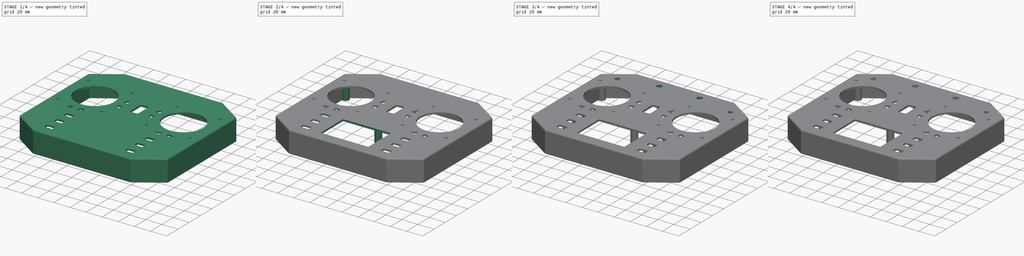
[diagram: build sequence overview — one tinted view per stage of 4, left to right]
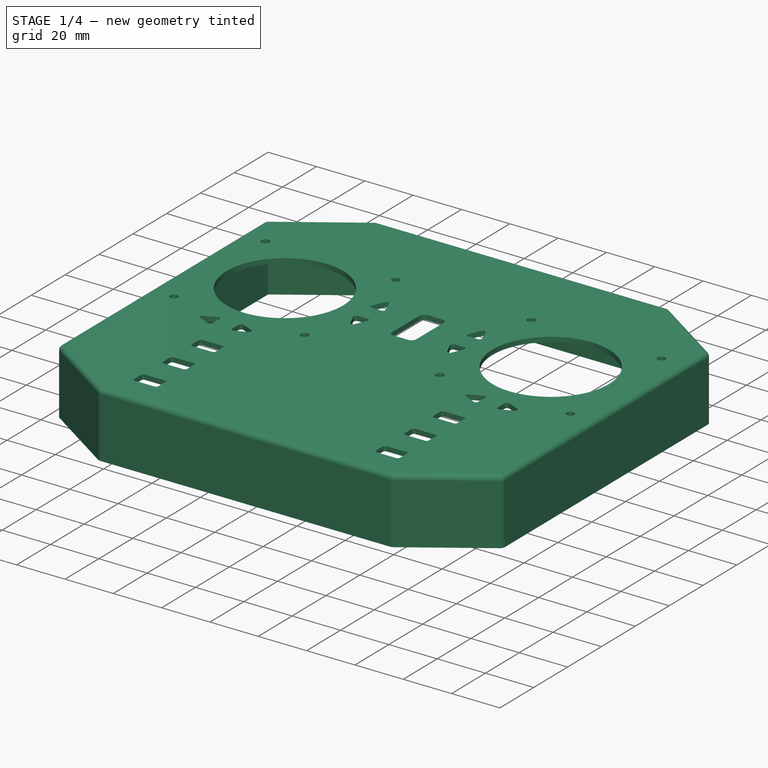
[diagram: stage 1 of 4 — iso view after this stage's code; geometry added in this stage tinted green]
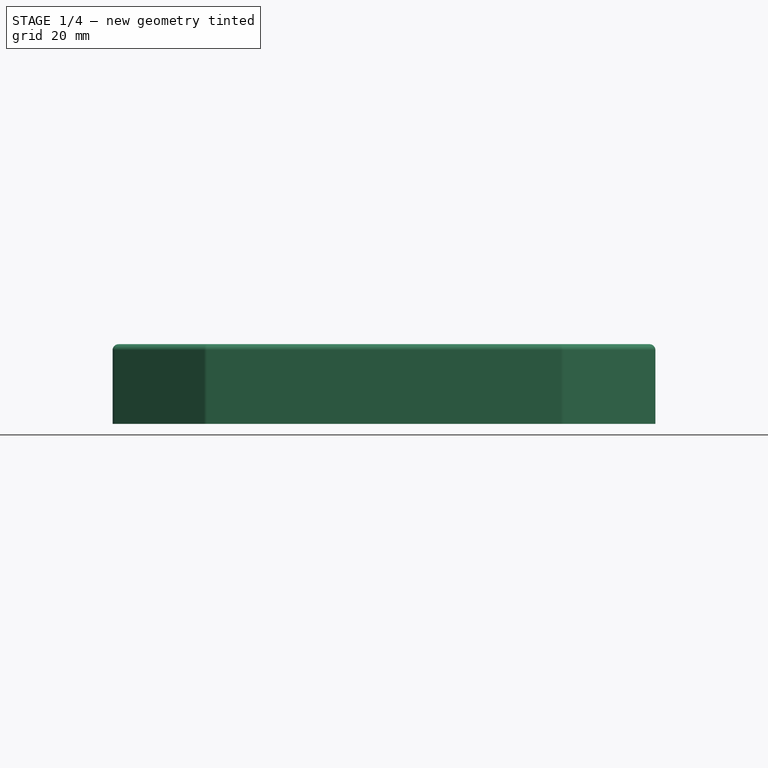
[diagram: stage 1 of 4 — front view after this stage's code; geometry added in this stage tinted green]
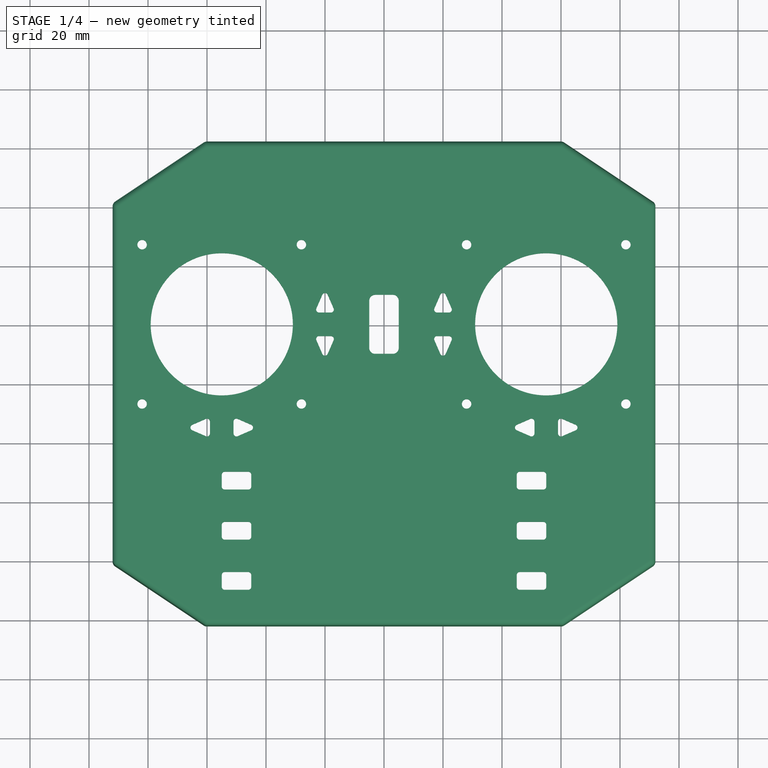
[diagram: stage 1 of 4 — top view after this stage's code; geometry added in this stage tinted green]
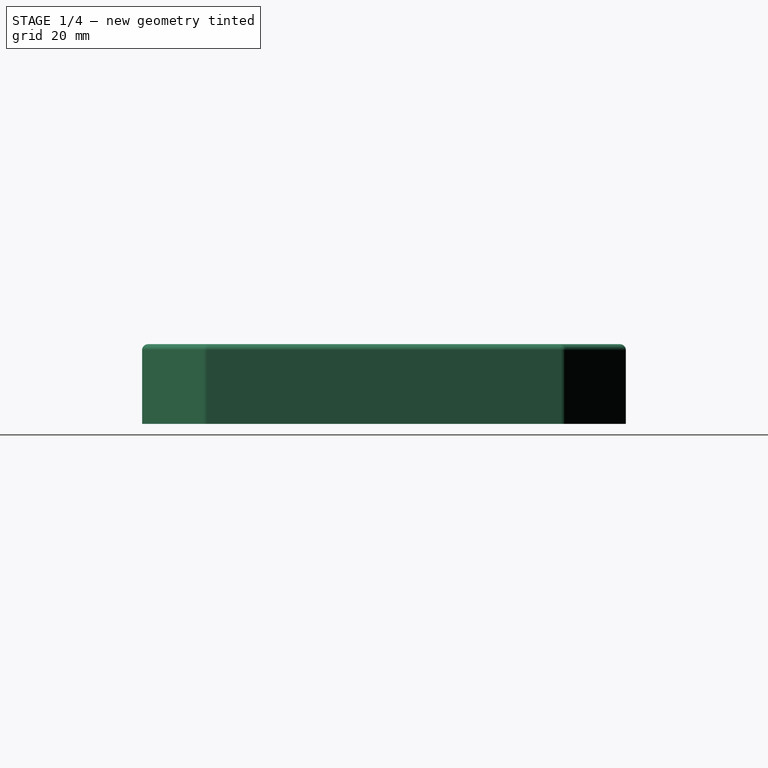
[diagram: stage 1 of 4 — right view after this stage's code; geometry added in this stage tinted green]
FCSTD DOCUMENT  (FreeCAD 0.19R24291 (Git))
Label: TOP_SHELL_UPPER
License: All rights reserved
LicenseURL: http://en.wikipedia.org/wiki/All_rights_reserved
objects: Sketcher::SketchObject×9, PartDesign::Pocket×5, PartDesign::Pad×4, PartDesign::Fillet×2, Spreadsheet::Sheet×1, App::Link×1, PartDesign::Thickness×1, PartDesign::Hole×1, PartDesign::Body×1
note: 36 computed .brp shape members not serialized (recipe doc carries the construction recipe); baked Part::Feature solids carry a one-line shape summary decoded from their .brp
EXTERNAL_REF file=transmitter.FCStd obj=Spreadsheet

FEATURE [Sketcher::SketchObject] Sketch
  FullyConstrained = true
  MapMode = 5
  Support = -> [XY_Plane]
  expr: Constraints[267] = <<body>>.trimButtonDistance
  expr: Constraints[196] = <<body>>.trimButtonfillet
  expr: Constraints[199] = <<body>>.trimButtonfillet
  expr: Constraints[229] = <<body>>.trimButtonfillet
  expr: Constraints[200] = <<body>>.trimButtonfillet
  expr: Constraints[268] = <<body>>.trimButtonDistance / 2
  expr: Constraints[269] = <<body>>.trimDistanceFromGimbal
  expr: Constraints[239] = <<body>>.trimButtonfillet
  expr: Constraints[124] = <<body>>.trimButtonfillet
  expr: Constraints[234] = <<body>>.trimButtonfillet
  expr: Constraints[162] = <<body>>.powerButtonFillet
  expr: Constraints[150] = <<body>>.menuButtonDistance
  expr: Constraints[123] = <<body>>.trimButtonfillet
  expr: Constraints[165] = <<body>>.powerButtonWidth
  expr: Constraints[134] = <<body>>.menuButtonHeight
  expr: Constraints[2] = <<gimbal>>.InnerCircleDia / 2 + 0.1
  expr: Constraints[5] = <<gimbal>>.holesDia / 2 + 0.1
  expr: Constraints[23] = <<gimbal>>.holesDistance / 2
  expr: Constraints[119] = <<body>>.trimButtonfillet
  expr: Constraints[197] = <<body>>.trimButtonfillet
  expr: Constraints[19] = <<gimbal>>.holesDistance / 2
  expr: Constraints[230] = <<body>>.trimButtonfillet
  expr: Constraints[7] = <<gimbal>>.holesDia / 2 + 0.1
  expr: Constraints[231] = <<body>>.trimButtonfillet
  expr: Constraints[118] = <<body>>.trimButtonfillet
  expr: Constraints[272] = <<body>>.trimDistanceFromGimbal
  expr: Constraints[126] = <<body>>.trimButtonfillet
  expr: Constraints[69] = <<body>>.trimButtonfillet
  expr: Constraints[132] = <<body>>.trimButtonfillet
  expr: Constraints[161] = <<body>>.powerButtonFillet
  expr: Constraints[241] = <<body>>.trimButtonDistance
  expr: Constraints[136] = <<body>>.menuButtonHeight
  expr: Constraints[147] = <<body>>.menuButtonSpacing
  expr: Constraints[133] = <<body>>.trimButtonfillet
  expr: Constraints[11] = <<gimbal>>.holesDia / 2 + 0.1
  expr: Constraints[48] = <<body>>.trimButtonfillet
  expr: Constraints[131] = <<body>>.trimButtonfillet
  expr: Constraints[68] = <<body>>.trimButtonfillet
  expr: Constraints[232] = <<body>>.trimButtonfillet
  expr: Constraints[10] = <<gimbal>>.holesDia / 2 + 0.1
  expr: Constraints[235] = <<body>>.trimButtonfillet
  expr: Constraints[163] = <<body>>.powerButtonFillet
  expr: Constraints[122] = <<body>>.trimButtonfillet
  expr: Constraints[66] = <<body>>.trimButtonfillet
  expr: Constraints[149] = <<body>>.menuDistanceFromCenter
  expr: Constraints[233] = <<body>>.trimButtonfillet
  expr: Constraints[125] = <<body>>.trimButtonfillet
  expr: Constraints[151] = <<body>>.menuButtonDistance
  expr: Constraints[152] = <<body>>.menuButtonDistance
  expr: Constraints[4] = <<gimbal>>.holesDia / 2 + 0.1
  expr: Constraints[198] = <<body>>.trimButtonfillet
  expr: Constraints[236] = <<body>>.trimButtonfillet
  expr: Constraints[128] = <<body>>.trimButtonfillet
  expr: Constraints[6] = <<gimbal>>.holesDia / 2 + 0.1
  expr: Constraints[129] = <<body>>.trimButtonfillet
  expr: Constraints[275] = <<body>>.trimDistanceFromGimbal
  expr: Constraints[195] = <<body>>.trimButtonfillet
  expr: Constraints[238] = <<body>>.trimButtonfillet
  expr: Constraints[49] = <<body>>.trimButtonfillet
  expr: Constraints[121] = <<body>>.trimButtonfillet
  expr: Constraints[20] = <<gimbal>>.holesDistance / 2
  expr: Constraints[143] = <<body>>.menuButtonWidth
  expr: Constraints[194] = <<body>>.trimButtonfillet
  expr: Constraints[276] = <<body>>.trimDistanceFromGimbal
  expr: Constraints[192] = <<body>>.trimButtonfillet
  expr: Constraints[243] = <<body>>.trimButtonDistance / 2
  expr: Constraints[67] = <<body>>.trimButtonfillet
  expr: Constraints[53] = <<body>>.menuButtonHeight
  expr: Constraints[142] = <<body>>.menuButtonWidth
  expr: Constraints[166] = <<body>>.powerButtonHeight
  expr: Constraints[22] = <<gimbal>>.holesDistance / 2
  expr: Constraints[141] = <<body>>.menuButtonWidth
  expr: Constraints[140] = <<body>>.menuButtonWidth
  expr: Constraints[139] = <<body>>.menuButtonWidth
  expr: Constraints[191] = <<body>>.trimButtonfillet
  expr: Constraints[138] = <<body>>.menuButtonHeight
  expr: Constraints[137] = <<body>>.menuButtonHeight
  expr: Constraints[127] = <<body>>.trimButtonfillet
  expr: Constraints[240] = <<body>>.trimButtonfillet
  expr: Constraints[135] = <<body>>.menuButtonHeight
  expr: Constraints[244] = <<body>>.trimButtonWidth
  expr: Constraints[120] = <<body>>.trimButtonfillet
  expr: Constraints[193] = <<body>>.trimButtonfillet
  expr: Constraints[21] = <<gimbal>>.holesDistance / 2
  expr: Constraints[51] = <<body>>.trimButtonfillet
  expr: Constraints[228] = <<body>>.trimButtonfillet
  expr: Constraints[242] = <<body>>.trimButtonHeight
  expr: Constraints[201] = <<body>>.trimButtonfillet
  expr: Constraints[3] = <<body>>.gimbalDistance
  expr: Constraints[168] = <<body>>.powerButtonDistanceFromCenter
  expr: Constraints[148] = <<body>>.menuButtonSpacing
  expr: Constraints[52] = <<body>>.menuButtonWidth
  expr: Constraints[237] = <<body>>.trimButtonfillet
  expr: Constraints[8] = <<gimbal>>.holesDia / 2 + 0.1
  expr: Constraints[16] = <<gimbal>>.holesDistance
  expr: Constraints[50] = <<body>>.trimButtonfillet
  expr: Constraints[18] = <<gimbal>>.holesDistance / 2
  expr: Constraints[24] = <<body>>.gimbalCenterSpacing
  expr: Constraints[9] = <<gimbal>>.holesDia / 2 + 0.1
  expr: Constraints[17] = <<gimbal>>.holesDistance / 2
  expr: Constraints[164] = <<body>>.powerButtonFillet
  expr: Constraints[130] = <<body>>.trimButtonfillet
  expr: Constraints[1] = <<gimbal>>.InnerCircleDia / 2 + 0.1
  sketch-geometry (114):
    g0: Circle CenterX=-55 CenterY=20 CenterZ=0 NormalX=0 NormalY=0 NormalZ=1 AngleXU=0 Radius=24.1
    g1: Circle CenterX=55 CenterY=20 CenterZ=0 NormalX=0 NormalY=0 NormalZ=1 AngleXU=0 Radius=24.1
    g2: Circle CenterX=-82 CenterY=47 CenterZ=0 NormalX=0 NormalY=0 NormalZ=1 AngleXU=0 Radius=1.6
    g3: Circle CenterX=-28 CenterY=47 CenterZ=0 NormalX=0 NormalY=0 NormalZ=1 AngleXU=0 Radius=1.6
    g4: Circle CenterX=-82 CenterY=-7 CenterZ=0 NormalX=0 NormalY=0 NormalZ=1 AngleXU=0 Radius=1.6
    g5: Circle CenterX=-28 CenterY=-7 CenterZ=0 NormalX=0 NormalY=0 NormalZ=1 AngleXU=0 Radius=1.6
    g6: Circle CenterX=28 CenterY=47 CenterZ=0 NormalX=0 NormalY=0 NormalZ=1 AngleXU=0 Radius=1.6
    g7: Circle CenterX=82 CenterY=47 CenterZ=0 NormalX=0 NormalY=0 NormalZ=1 AngleXU=0 Radius=1.6
    g8: Circle CenterX=28 CenterY=-7 CenterZ=0 NormalX=0 NormalY=0 NormalZ=1 AngleXU=0 Radius=1.6
    g9: Circle CenterX=82 CenterY=-7 CenterZ=0 NormalX=0 NormalY=0 NormalZ=1 AngleXU=0 Radius=1.6
    g10: LineSegment StartX=-22 StartY=24 StartZ=0 EndX=-18 EndY=24 EndZ=0
    g11: LineSegment StartX=-17.0829 StartY=25.3986 StartZ=0 EndX=-19.0829 EndY=30 EndZ=0
    g12: LineSegment StartX=-20.9171 StartY=30 StartZ=0 EndX=-22.9171 EndY=25.3986 EndZ=0
    g13: LineSegment StartX=-22 StartY=16 StartZ=0 EndX=-18 EndY=16 EndZ=0
    g14: LineSegment StartX=-17.0829 StartY=14.6014 StartZ=0 EndX=-19.0829 EndY=10 EndZ=0
    g15: LineSegment StartX=-20.9171 StartY=10 StartZ=0 EndX=-22.9171 EndY=14.6014 EndZ=0
    g16: LineSegment StartX=19.0829 StartY=30 StartZ=0 EndX=17.0829 EndY=25.3986 EndZ=0
    g17: LineSegment StartX=18 StartY=24 StartZ=0 EndX=22 EndY=24 EndZ=0
    g18: LineSegment StartX=22.9171 StartY=25.3986 StartZ=0 EndX=20.9171 EndY=30 EndZ=0
    g19: LineSegment StartX=18 StartY=16 StartZ=0 EndX=22 EndY=16 EndZ=0
    g20: LineSegment StartX=22.9171 StartY=14.6014 StartZ=0 EndX=20.9171 EndY=10 EndZ=0
    g21: LineSegment StartX=19.0829 StartY=10 StartZ=0 EndX=17.0829 EndY=14.6014 EndZ=0
    g22: LineSegment StartX=-65 StartY=-14.0829 StartZ=0 EndX=-60.3986 EndY=-12.0829 EndZ=0
    g23: LineSegment StartX=-59 StartY=-13 StartZ=0 EndX=-59 EndY=-17 EndZ=0
    g24: LineSegment StartX=-60.3986 StartY=-17.9171 StartZ=0 EndX=-65 EndY=-15.9171 EndZ=0
    g25: LineSegment StartX=-51 StartY=-13 StartZ=0 EndX=-51 EndY=-17 EndZ=0
    g26: LineSegment StartX=-49.6014 StartY=-17.9171 StartZ=0 EndX=-45 EndY=-15.9171 EndZ=0
    g27: LineSegment StartX=-45 StartY=-14.0829 StartZ=0 EndX=-49.6014 EndY=-12.0829 EndZ=0
    g28: LineSegment StartX=45 StartY=-14.0829 StartZ=0 EndX=49.6014 EndY=-12.0829 EndZ=0
    g29: LineSegment StartX=51 StartY=-13 StartZ=0 EndX=51 EndY=-17 EndZ=0
    g30: LineSegment StartX=49.6014 StartY=-17.9171 StartZ=0 EndX=45 EndY=-15.9171 EndZ=0
    g31: LineSegment StartX=59 StartY=-13 StartZ=0 EndX=59 EndY=-17 EndZ=0
    g32: LineSegment StartX=60.3986 StartY=-17.9171 StartZ=0 EndX=65 EndY=-15.9171 EndZ=0
    g33: LineSegment StartX=65 StartY=-14.0829 StartZ=0 EndX=60.3986 EndY=-12.0829 EndZ=0
    g34: LineSegment StartX=-54 StartY=-30 StartZ=0 EndX=-46 EndY=-30 EndZ=0
    g35: LineSegment StartX=-45 StartY=-31 StartZ=0 EndX=-45 EndY=-35 EndZ=0
    g36: LineSegment StartX=-46 StartY=-36 StartZ=0 EndX=-54 EndY=-36 EndZ=0
    g37: LineSegment StartX=-55 StartY=-35 StartZ=0 EndX=-55 EndY=-31 EndZ=0
    g38: LineSegment StartX=-3 StartY=30 StartZ=0 EndX=3 EndY=30 EndZ=0
    g39: LineSegment StartX=5 StartY=28 StartZ=0 EndX=5 EndY=12 EndZ=0
    g40: LineSegment StartX=3 StartY=10 StartZ=0 EndX=-3 EndY=10 EndZ=0
    g41: LineSegment StartX=-5 StartY=12 StartZ=0 EndX=-5 EndY=28 EndZ=0
    g42: ArcOfCircle CenterX=-46 CenterY=-31 CenterZ=0 NormalX=0 NormalY=0 NormalZ=1 AngleXU=0 Radius=1 StartAngle=0 EndAngle=1.5708
    g43: ArcOfCircle CenterX=-46 CenterY=-35 CenterZ=0 NormalX=0 NormalY=0 NormalZ=1 AngleXU=0 Radius=1 StartAngle=4.71239 EndAngle=6.28319
    g44: ArcOfCircle CenterX=-54 CenterY=-31 CenterZ=0 NormalX=0 NormalY=0 NormalZ=1 AngleXU=0 Radius=1 StartAngle=1.5708 EndAngle=3.14159
    g45: ArcOfCircle CenterX=-54 CenterY=-35 CenterZ=0 NormalX=0 NormalY=0 NormalZ=1 AngleXU=0 Radius=1 StartAngle=3.14159 EndAngle=4.71239
    g46: LineSegment StartX=-54 StartY=-47 StartZ=0 EndX=-46 EndY=-47 EndZ=0
    g47: LineSegment StartX=-45 StartY=-48 StartZ=0 EndX=-45 EndY=-52 EndZ=0
    g48: LineSegment StartX=-46 StartY=-53 StartZ=0 EndX=-54 EndY=-53 EndZ=0
    g49: LineSegment StartX=-55 StartY=-52 StartZ=0 EndX=-55 EndY=-48 EndZ=0
    g50: ArcOfCircle CenterX=-46 CenterY=-48 CenterZ=0 NormalX=0 NormalY=0 NormalZ=1 AngleXU=0 Radius=1 StartAngle=5e-16 EndAngle=1.5708
    g51: ArcOfCircle CenterX=-46 CenterY=-52 CenterZ=0 NormalX=0 NormalY=0 NormalZ=1 AngleXU=0 Radius=1 StartAngle=4.71239 EndAngle=6.28319
    g52: ArcOfCircle CenterX=-54 CenterY=-52 CenterZ=0 NormalX=0 NormalY=0 NormalZ=1 AngleXU=0 Radius=1 StartAngle=3.14159 EndAngle=4.71239
    g53: ArcOfCircle CenterX=-54 CenterY=-48 CenterZ=0 NormalX=0 NormalY=0 NormalZ=1 AngleXU=0 Radius=1 StartAngle=1.5708 EndAngle=3.14159
    g54: LineSegment StartX=46 StartY=-30 StartZ=0 EndX=54 EndY=-30 EndZ=0
    g55: LineSegment StartX=55 StartY=-31 StartZ=0 EndX=55 EndY=-35 EndZ=0
    g56: LineSegment StartX=54 StartY=-36 StartZ=0 EndX=46 EndY=-36 EndZ=0
    g57: LineSegment StartX=45 StartY=-35 StartZ=0 EndX=45 EndY=-31 EndZ=0
    g58: LineSegment StartX=46 StartY=-47 StartZ=0 EndX=54 EndY=-47 EndZ=0
    g59: LineSegment StartX=55 StartY=-48 StartZ=0 EndX=55 EndY=-52 EndZ=0
    g60: LineSegment StartX=54 StartY=-53 StartZ=0 EndX=46 EndY=-53 EndZ=0
    g61: LineSegment StartX=45 StartY=-52 StartZ=0 EndX=45 EndY=-48 EndZ=0
    g62: LineSegment StartX=46 StartY=-64 StartZ=0 EndX=54 EndY=-64 EndZ=0
    g63: LineSegment StartX=55 StartY=-65 StartZ=0 EndX=55 EndY=-69 EndZ=0
    g64: LineSegment StartX=54 StartY=-70 StartZ=0 EndX=46 EndY=-70 EndZ=0
    g65: LineSegment StartX=45 StartY=-69 StartZ=0 EndX=45 EndY=-65 EndZ=0
    g66: LineSegment StartX=-54 StartY=-64 StartZ=0 EndX=-46 EndY=-64 EndZ=0
    g67: LineSegment StartX=-45 StartY=-65 StartZ=0 EndX=-45 EndY=-69 EndZ=0
    g68: LineSegment StartX=-46 StartY=-70 StartZ=0 EndX=-54 EndY=-70 EndZ=0
    g69: LineSegment StartX=-55 StartY=-69 StartZ=0 EndX=-55 EndY=-65 EndZ=0
    g70: ArcOfCircle CenterX=46 CenterY=-31 CenterZ=0 NormalX=0 NormalY=0 NormalZ=1 AngleXU=0 Radius=1 StartAngle=1.5708 EndAngle=3.14159
    g71: ArcOfCircle CenterX=46 CenterY=-35 CenterZ=0 NormalX=0 NormalY=0 NormalZ=1 AngleXU=0 Radius=1 StartAngle=3.14159 EndAngle=4.71239
    g72: ArcOfCircle CenterX=54 CenterY=-31 CenterZ=0 NormalX=0 NormalY=0 NormalZ=1 AngleXU=0 Radius=1 StartAngle=-9e-16 EndAngle=1.5708
    g73: ArcOfCircle CenterX=54 CenterY=-35 CenterZ=0 NormalX=0 NormalY=0 NormalZ=1 AngleXU=0 Radius=1 StartAngle=4.71239 EndAngle=6.28319
    g74: ArcOfCircle CenterX=46 CenterY=-48 CenterZ=0 NormalX=0 NormalY=0 NormalZ=1 AngleXU=0 Radius=1 StartAngle=1.5708 EndAngle=3.14159
    g75: ArcOfCircle CenterX=46 CenterY=-52 CenterZ=0 NormalX=0 NormalY=0 NormalZ=1 AngleXU=0 Radius=1 StartAngle=3.14159 EndAngle=4.71239
    g76: ArcOfCircle CenterX=54 CenterY=-52 CenterZ=0 NormalX=0 NormalY=0 NormalZ=1 AngleXU=0 Radius=1 StartAngle=4.71239 EndAngle=6.28319
    g77: ArcOfCircle CenterX=54 CenterY=-48 CenterZ=0 NormalX=0 NormalY=0 NormalZ=1 AngleXU=0 Radius=1 StartAngle=-9e-16 EndAngle=1.5708
    g78: ArcOfCircle CenterX=54 CenterY=-65 CenterZ=0 NormalX=0 NormalY=0 NormalZ=1 AngleXU=0 Radius=1 StartAngle=8e-16 EndAngle=1.5708
    g79: ArcOfCircle CenterX=54 CenterY=-69 CenterZ=0 NormalX=0 NormalY=0 NormalZ=1 AngleXU=0 Radius=1 StartAngle=4.71239 EndAngle=6.28319
    g80: ArcOfCircle CenterX=46 CenterY=-69 CenterZ=0 NormalX=0 NormalY=0 NormalZ=1 AngleXU=0 Radius=1 StartAngle=3.14159 EndAngle=4.71239
    g81: ArcOfCircle CenterX=46 CenterY=-65 CenterZ=0 NormalX=0 NormalY=0 NormalZ=1 AngleXU=0 Radius=1 StartAngle=1.5708 EndAngle=3.14159
    g82: ArcOfCircle CenterX=-46 CenterY=-65 CenterZ=0 NormalX=0 NormalY=0 NormalZ=1 AngleXU=0 Radius=1 StartAngle=0 EndAngle=1.5708
    g83: ArcOfCircle CenterX=-46 CenterY=-69 CenterZ=0 NormalX=0 NormalY=0 NormalZ=1 AngleXU=0 Radius=1 StartAngle=4.71239 EndAngle=6.28319
    g84: ArcOfCircle CenterX=-54 CenterY=-65 CenterZ=0 NormalX=0 NormalY=0 NormalZ=1 AngleXU=0 Radius=1 StartAngle=1.5708 EndAngle=3.14159
    g85: ArcOfCircle CenterX=-54 CenterY=-69 CenterZ=0 NormalX=0 NormalY=0 NormalZ=1 AngleXU=0 Radius=1 StartAngle=3.14159 EndAngle=4.71239
    g86: ArcOfCircle CenterX=-3 CenterY=28 CenterZ=0 NormalX=0 NormalY=0 NormalZ=1 AngleXU=0 Radius=2 StartAngle=1.5708 EndAngle=3.14159
    g87: ArcOfCircle CenterX=3 CenterY=28 CenterZ=0 NormalX=0 NormalY=0 NormalZ=1 AngleXU=0 Radius=2 StartAngle=0 EndAngle=1.5708
    g88: ArcOfCircle CenterX=3 CenterY=12 CenterZ=0 NormalX=0 NormalY=0 NormalZ=1 AngleXU=0 Radius=2 StartAngle=4.71239 EndAngle=6.28319
    g89: ArcOfCircle CenterX=-3 CenterY=12 CenterZ=0 NormalX=0 NormalY=0 NormalZ=1 AngleXU=0 Radius=2 StartAngle=3.14159 EndAngle=4.71239
    g90: ArcOfCircle CenterX=-20 CenterY=29.6014 CenterZ=0 NormalX=0 NormalY=0 NormalZ=1 AngleXU=0 Radius=1 StartAngle=0.410018 EndAngle=2.73157
    g91: ArcOfCircle CenterX=20 CenterY=29.6014 CenterZ=0 NormalX=0 NormalY=0 NormalZ=1 AngleXU=0 Radius=1 StartAngle=0.410018 EndAngle=2.73157
    g92: ArcOfCircle CenterX=-20 CenterY=10.3986 CenterZ=0 NormalX=0 NormalY=0 NormalZ=1 AngleXU=0 Radius=1 StartAngle=3.55161 EndAngle=5.87317
    g93: ArcOfCircle CenterX=20 CenterY=10.3986 CenterZ=0 NormalX=0 NormalY=0 NormalZ=1 AngleXU=0 Radius=1 StartAngle=3.55161 EndAngle=5.87317
    g94: ArcOfCircle CenterX=22 CenterY=15 CenterZ=0 NormalX=0 NormalY=0 NormalZ=1 AngleXU=0 Radius=1 StartAngle=5.87317 EndAngle=7.85398
    g95: ArcOfCircle CenterX=18 CenterY=15 CenterZ=0 NormalX=0 NormalY=0 NormalZ=1 AngleXU=0 Radius=1 StartAngle=1.5708 EndAngle=3.55161
    g96: ArcOfCircle CenterX=18 CenterY=25 CenterZ=0 NormalX=0 NormalY=0 NormalZ=1 AngleXU=0 Radius=1 StartAngle=2.73157 EndAngle=4.71239
    g97: ArcOfCircle CenterX=-22 CenterY=25 CenterZ=0 NormalX=0 NormalY=0 NormalZ=1 AngleXU=0 Radius=1 StartAngle=2.73157 EndAngle=4.71239
    g98: ArcOfCircle CenterX=-18 CenterY=25 CenterZ=0 NormalX=0 NormalY=0 NormalZ=1 AngleXU=0 Radius=1 StartAngle=4.71239 EndAngle=6.6932
    g99: ArcOfCircle CenterX=-22 CenterY=15 CenterZ=0 NormalX=0 NormalY=0 NormalZ=1 AngleXU=0 Radius=1 StartAngle=1.5708 EndAngle=3.55161
    g100: ArcOfCircle CenterX=-18 CenterY=15 CenterZ=0 NormalX=0 NormalY=0 NormalZ=1 AngleXU=0 Radius=1 StartAngle=5.87317 EndAngle=7.85398
    g101: ArcOfCircle CenterX=22 CenterY=25 CenterZ=0 NormalX=0 NormalY=0 NormalZ=1 AngleXU=0 Radius=1 StartAngle=4.71239 EndAngle=6.6932
    g102: ArcOfCircle CenterX=60 CenterY=-17 CenterZ=0 NormalX=0 NormalY=0 NormalZ=1 AngleXU=0 Radius=1 StartAngle=3.14159 EndAngle=5.12241
    g103: ArcOfCircle CenterX=64.6014 CenterY=-15 CenterZ=0 NormalX=0 NormalY=0 NormalZ=1 AngleXU=0 Radius=1 StartAngle=5.12241 EndAngle=7.44396
    g104: ArcOfCircle CenterX=60 CenterY=-13 CenterZ=0 NormalX=0 NormalY=0 NormalZ=1 AngleXU=0 Radius=1 StartAngle=1.16078 EndAngle=3.14159
    g105: ArcOfCircle CenterX=50 CenterY=-13 CenterZ=0 NormalX=0 NormalY=0 NormalZ=1 AngleXU=0 Radius=1 StartAngle=0 EndAngle=1.98081
    g106: ArcOfCircle CenterX=45.3986 CenterY=-15 CenterZ=0 NormalX=0 NormalY=0 NormalZ=1 AngleXU=0 Radius=1 StartAngle=1.98081 EndAngle=4.30237
    g107: ArcOfCircle CenterX=50 CenterY=-17 CenterZ=0 NormalX=0 NormalY=0 NormalZ=1 AngleXU=0 Radius=1 StartAngle=4.30237 EndAngle=6.28319
    g108: ArcOfCircle CenterX=-50 CenterY=-13 CenterZ=0 NormalX=0 NormalY=0 NormalZ=1 AngleXU=0 Radius=1 StartAngle=1.16078 EndAngle=3.14159
    g109: ArcOfCircle CenterX=-45.3986 CenterY=-15 CenterZ=0 NormalX=0 NormalY=0 NormalZ=1 AngleXU=0 Radius=1 StartAngle=5.12241 EndAngle=7.44396
    g110: ArcOfCircle CenterX=-50 CenterY=-17 CenterZ=0 NormalX=0 NormalY=0 NormalZ=1 AngleXU=0 Radius=1 StartAngle=3.14159 EndAngle=5.12241
    g111: ArcOfCircle CenterX=-60 CenterY=-17 CenterZ=0 NormalX=0 NormalY=0 NormalZ=1 AngleXU=0 Radius=1 StartAngle=4.30237 EndAngle=6.28319
    g112: ArcOfCircle CenterX=-60 CenterY=-13 CenterZ=0 NormalX=0 NormalY=0 NormalZ=1 AngleXU=0 Radius=1 StartAngle=-4.7882e-12 EndAngle=1.98081
    g113: ArcOfCircle CenterX=-64.6014 CenterY=-15 CenterZ=0 NormalX=0 NormalY=0 NormalZ=1 AngleXU=0 Radius=1 StartAngle=1.98081 EndAngle=4.30237
  constraints (277):
    c: Symmetric(g0,g1,g-2)
    c: Radius(g1) = 24.1
    c: Radius(g0) = 24.1
    c: Distance(g0,g1) = 110
    c: Radius(g7) = 1.6
    c: Radius(g6) = 1.6
    c: Radius(g9) = 1.6
    c: Radius(g8) = 1.6
    c: Radius(g3) = 1.6
    c: Radius(g5) = 1.6
    c: Radius(g2) = 1.6
    c: Radius(g4) = 1.6
    c: Symmetric(g3,g6,g-2)
    c: Symmetric(g2,g7,g-2)
    c: Symmetric(g5,g8,g-2)
    c: Symmetric(g4,g9,g-2)
    c: DistanceX(g2,g3) = 54
    c: DistanceX(g0,g3) = 27
    c: DistanceX(g0,g5) = 27
    c: DistanceX(g4,g0) = 27
    c: DistanceY(g0,g3) = 27
    c: DistanceY(g0,g2) = 27
    c: DistanceY(g4,g0) = 27
    c: DistanceY(g5,g0) = 27
    c: DistanceY(g-1,g1) = 20
    c: Horizontal(g10)
    c: Horizontal(g13)
    c: Horizontal(g17)
    c: Horizontal(g19)
    c: Vertical(g23)
    c: Vertical(g25)
    c: Vertical(g29)
    c: Vertical(g31)
    c: Horizontal(g34)
    c: Horizontal(g36)
    c: Vertical(g35)
    c: Vertical(g37)
    c: Horizontal(g40)
    c: Vertical(g39)
    c: Vertical(g41)
    c: Tangent(g34,g42) = 1.5708
    c: Tangent(g35,g42) = 1.5708
    c: Tangent(g35,g43) = 1.5708
    c: Tangent(g36,g43) = 1.5708
    c: Tangent(g34,g44) = 1.5708
    c: Tangent(g37,g44) = 1.5708
    c: Tangent(g36,g45) = 1.5708
    c: Tangent(g37,g45) = 1.5708
    c: Radius(g42) = 1
    c: Radius(g43) = 1
    c: Radius(g45) = 1
    c: Radius(g44) = 1
    c: DistanceX(g37,g35) = 10
    c: DistanceY(g36,g34) = 6
    c: Horizontal(g46)
    c: Horizontal(g48)
    c: Vertical(g47)
    c: Vertical(g49)
    c: Tangent(g46,g50) = 1.5708
    c: Tangent(g47,g50) = 1.5708
    c: Tangent(g47,g51) = 1.5708
    c: Tangent(g48,g51) = 1.5708
    c: Tangent(g48,g52) = 1.5708
    c: Tangent(g49,g52) = 1.5708
    c: Tangent(g46,g53) = 1.5708
    c: Tangent(g49,g53) = 1.5708
    c: Radius(g50) = 1
    c: Radius(g51) = 1
    c: Radius(g52) = 1
    c: Radius(g53) = 1
    c: Horizontal(g54)
    c: Horizontal(g56)
    c: Vertical(g55)
    c: Vertical(g57)
    c: Horizontal(g58)
    c: Horizontal(g60)
    c: Vertical(g59)
    c: Vertical(g61)
    c: Horizontal(g62)
    c: Horizontal(g64)
    c: Vertical(g63)
    c: Vertical(g65)
    c: Horizontal(g66)
    c: Horizontal(g68)
    c: Vertical(g67)
    c: Vertical(g69)
    c: Tangent(g54,g70) = 1.5708
    c: Tangent(g57,g70) = 1.5708
    c: Tangent(g56,g71) = 1.5708
    c: Tangent(g57,g71) = 1.5708
    c: Tangent(g54,g72) = 1.5708
    c: Tangent(g55,g72) = 1.5708
    c: Tangent(g55,g73) = 1.5708
    c: Tangent(g56,g73) = 1.5708
    c: Tangent(g58,g74) = 1.5708
    c: Tangent(g61,g74) = 1.5708
    c: Tangent(g60,g75) = 1.5708
    c: Tangent(g61,g75) = 1.5708
    c: Tangent(g59,g76) = 1.5708
    c: Tangent(g60,g76) = 1.5708
    c: Tangent(g58,g77) = 1.5708
    c: Tangent(g59,g77) = 1.5708
    c: Tangent(g62,g78) = 1.5708
    c: Tangent(g63,g78) = 1.5708
    c: Tangent(g63,g79) = 1.5708
    c: Tangent(g64,g79) = 1.5708
    c: Tangent(g64,g80) = 1.5708
    c: Tangent(g65,g80) = 1.5708
    c: Tangent(g62,g81) = 1.5708
    c: Tangent(g65,g81) = 1.5708
    c: Tangent(g66,g82) = 1.5708
    c: Tangent(g67,g82) = 1.5708
    c: Tangent(g67,g83) = 1.5708
    c: Tangent(g68,g83) = 1.5708
    c: Tangent(g66,g84) = 1.5708
    c: Tangent(g69,g84) = 1.5708
    c: Tangent(g68,g85) = 1.5708
    c: Tangent(g69,g85) = 1.5708
    c: Radius(g82) = 1
    c: Radius(g83) = 1
    c: Radius(g85) = 1
    c: Radius(g84) = 1
    c: Radius(g81) = 1
    c: Radius(g80) = 1
    c: Radius(g78) = 1
    c: Radius(g79) = 1
    c: Radius(g75) = 1
    c: Radius(g76) = 1
    c: Radius(g74) = 1
    c: Radius(g77) = 1
    c: Radius(g73) = 1
    c: Radius(g71) = 1
    c: Radius(g70) = 1
    c: Radius(g72) = 1
    c: DistanceY(g48,g46) = 6
    c: DistanceY(g68,g66) = 6
    c: DistanceY(g56,g54) = 6
    c: DistanceY(g60,g58) = 6
    c: DistanceY(g64,g62) = 6
    c: DistanceX(g69,g67) = 10
    c: DistanceX(g65,g63) = 10
    c: DistanceX(g61,g59) = 10
    c: DistanceX(g57,g55) = 10
    c: DistanceX(g49,g47) = 10
    c: Symmetric(g35,g57,g-2)
    c: Symmetric(g47,g61,g-2)
    c: Symmetric(g67,g65,g-2)
    c: DistanceY(g46,g36) = 11
    c: DistanceY(g66,g48) = 11
    c: DistanceY(g34,g-1) = 30
    c: DistanceX(g35,g57) = 90
    c: DistanceX(g47,g61) = 90
    c: DistanceX(g67,g65) = 90
    c: Tangent(g38,g86) = 1.5708
    c: Tangent(g41,g86) = 1.5708
    c: Tangent(g38,g87) = 1.5708
    c: Tangent(g39,g87) = 1.5708
    c: Tangent(g39,g88) = 1.5708
    c: Tangent(g40,g88) = 1.5708
    c: Tangent(g40,g89) = 1.5708
    c: Tangent(g41,g89) = 1.5708
    c: Radius(g86) = 2
    c: Radius(g87) = 2
    c: Radius(g89) = 2
    c: Radius(g88) = 2
    c: DistanceX(g41,g39) = 10
    c: DistanceY(g40,g38) = 20
    c: Symmetric(g41,g39,g-2)
    c: DistanceY(g-1,g40) = 10
    c: Tangent(g11,g90) = -1.5708
    c: Tangent(g12,g90) = -1.5708
    c: Tangent(g16,g91) = -1.5708
    c: Tangent(g18,g91) = -1.5708
    c: Tangent(g14,g92) = 1.5708
    c: Tangent(g15,g92) = 1.5708
    c: Tangent(g20,g93) = 1.5708
    c: Tangent(g21,g93) = 1.5708
    c: Tangent(g19,g94) = 1.5708
    c: Tangent(g20,g94) = 1.5708
    c: Tangent(g19,g95) = 1.5708
    c: Tangent(g21,g95) = 1.5708
    c: Tangent(g16,g96) = -1.5708
    c: Tangent(g17,g96) = -1.5708
    c: Tangent(g10,g97) = -1.5708
    c: Tangent(g12,g97) = -1.5708
    c: Tangent(g10,g98) = -1.5708
    c: Tangent(g11,g98) = -1.5708
    c: Tangent(g13,g99) = 1.5708
    c: Tangent(g15,g99) = 1.5708
    c: Tangent(g13,g100) = 1.5708
    c: Tangent(g14,g100) = 1.5708
    c: Radius(g90) = 1
    c: Radius(g97) = 1
    c: Radius(g98) = 1
    c: Radius(g99) = 1
    c: Radius(g92) = 1
    c: Radius(g100) = 1
    c: Radius(g91) = 1
    c: Radius(g96) = 1
    c: Radius(g93) = 1
    c: Radius(g95) = 1
    c: Radius(g94) = 1
    c: Tangent(g17,g101) = -1.5708
    c: Tangent(g18,g101) = -1.5708
    c: Tangent(g31,g102) = -1.5708
    c: Tangent(g32,g102) = -1.5708
    c: Tangent(g32,g103) = -1.5708
    c: Tangent(g33,g103) = -1.5708
    c: Tangent(g31,g104) = -1.5708
    c: Tangent(g33,g104) = -1.5708
    c: Tangent(g28,g105) = 1.5708
    c: Tangent(g29,g105) = 1.5708
    c: Tangent(g28,g106) = 1.5708
    c: Tangent(g30,g106) = 1.5708
    c: Tangent(g29,g107) = 1.5708
    c: Tangent(g30,g107) = 1.5708
    c: Tangent(g25,g108) = -1.5708
    c: Tangent(g27,g108) = -1.5708
    c: Tangent(g26,g109) = -1.5708
    c: Tangent(g27,g109) = -1.5708
    c: Tangent(g25,g110) = -1.5708
    c: Tangent(g26,g110) = -1.5708
    c: Tangent(g23,g111) = 1.5708
    c: Tangent(g24,g111) = 1.5708
    c: Tangent(g22,g112) = 1.5708
    c: Tangent(g23,g112) = 1.5708
    c: Tangent(g22,g113) = 1.5708
    c: Tangent(g24,g113) = 1.5708
    c: Radius(g101) = 1
    c: Radius(g102) = 1
    c: Radius(g103) = 1
    c: Radius(g104) = 1
    c: Radius(g105) = 1
    c: Radius(g107) = 1
    c: Radius(g106) = 1
    c: Radius(g108) = 1
    c: Radius(g109) = 1
    c: Radius(g110) = 1
    c: Radius(g113) = 1
    c: Radius(g112) = 1
    c: Radius(g111) = 1
    c: DistanceX(g23,g25) = 8
    c: DistanceX(g22,g23) = 6
    c: DistanceX(g0,g25) = 4
    c: DistanceY(g23,g23) = 4
    c: Equal(g10,g13)
    c: Equal(g13,g17)
    c: Equal(g17,g19)
    c: Equal(g19,g29)
    c: Equal(g29,g31)
    c: Equal(g31,g25)
    c: Equal(g25,g23)
    c: Equal(g12,g11)
    c: Equal(g11,g15)
    c: Equal(g15,g14)
    c: Equal(g14,g16)
    c: Equal(g16,g18)
    c: Equal(g18,g21)
    c: Equal(g21,g20)
    c: Equal(g20,g28)
    c: Equal(g28,g30)
    c: Equal(g30,g33)
    c: Equal(g33,g32)
    c: Equal(g32,g27)
    c: Equal(g27,g26)
    c: Equal(g26,g22)
    c: Equal(g22,g24)
    c: DistanceY(g13,g10) = 8
    c: DistanceY(g1,g17) = 4
    c: DistanceX(g0,g10) = 33
    c: Symmetric(g11,g16,g-2)
    c: Symmetric(g13,g19,g-2)
    c: DistanceX(g0,g13) = 33
    c: Symmetric(g27,g28,g-2)
    c: Symmetric(g23,g31,g-2)
    c: DistanceY(g25,g0) = 33
    c: DistanceY(g23,g0) = 33
FEATURE [Spreadsheet::Sheet] Spreadsheet  label="body"
  cells = A1=length; B1(length)=180; A2=width; B2(width)=160; A3=topLength; B3(topLength)=120; A4=leftLength; B4(leftLength)=120; A5=gimbalDistance; B5(gimbalDistance)=110; A6=gimbalCenterSpacing; B6(gimbalCenterSpacing)=20; A7=wallWidth; B7(wallWidth)=2; A8=topDepth; B8(topDepth)=25; A9=rimButtonDistance; B9(trimButtonDistance)=8; A10=trimButtonWidth; B10(trimButtonWidth)=4; A11=trimButtonheight; B11(trimButtonHeight)=6; A12=trimDistanceFromGimbal; B12(trimDistanceFromGimbal)=33; A13=trimButtonfillet; B13(trimButtonfillet)=1; A14=menuButtonWidth; B14(menuButtonWidth)=10; A15=menuButtonHeight; B15(menuButtonHeight)=6; A16=menuButtonSpacing; B16(menuButtonSpacing)=11; A17=menuButtonDistance; B17(menuButtonDistance)=90; A18=menuDistanceFromCenter; B18(menuDistanceFromCenter)=30; A19=powerButtonWidth; B19(powerButtonWidth)=10; A20=powerButtonHeight; B20(powerButtonHeight)=20; A21=powerButtonDistanceFromCenter; B21(powerButtonDistanceFromCenter)=10; A22=powerButtonFillet; B22(powerButtonFillet)=2; A23=wallFillet; B23(wallFillet)=2; A24=lcdWidth; B24(lcdWidth)=59; A25=lcdHeight; B25(lcdHeight)=40; A26=lcdDepth; B26(lcdDepth)=5; A27=lcdPcbThickness; B27(lcdPcbThickness)=1; A28=lcdDistanceFromCenter; B28(lcdDistanceFromCenter)=30; A29=mountOuterDia; B29(mountOuterDia)=8; A30=mountInnerDia; B30(mountInnerDia)=3.2; A31=middelMountDistance; B31(middelMountDistance)=15; A32=topMountSpacing; B32(topMountSpacing)=50; A33=bottomMountSpacing; B33(bottomMountSpacing)=10; A34=buttonMountSize; B34(buttonMountSize)=6; A35=buttonMountDepth; B35(buttonMountDepth)=4; A36=toggleSwitchDia; B36(toggleSwitchDia)=5.6; A37=toggleSwitchBoundaryOffset; B37(toggleSwitchBoundaryOffset)=10; A38=potDia; B38(potDia)=6.7; A39=potBoundaryOffset; B39(potBoundaryOffset)=10; A40=potSpacing; B40(potSpacing)=50; A41=supportLength; B41(supportLength)=2; A42=supportWidth; B42(supportWidth)=2; A43=supportAngle; B43(supportHeight)=2
FEATURE [App::Link] Link  label="gimbal"
  LinkedObject = -> <external transmitter.FCStd>#Spreadsheet
FEATURE [Sketcher::SketchObject] Sketch001
  FullyConstrained = true
  MapMode = 5
  Support = -> [XY_Plane]
  expr: Constraints[19] = <<body>>.leftLength
  expr: Constraints[17] = <<body>>.length
  expr: Constraints[20] = <<body>>.topLength
  expr: Constraints[18] = <<body>>.width
  sketch-geometry (8):
    g0: LineSegment StartX=-60 StartY=80 StartZ=0 EndX=60 EndY=80 EndZ=0
    g1: LineSegment StartX=60 StartY=80 StartZ=0 EndX=90 EndY=60 EndZ=0
    g2: LineSegment StartX=90 StartY=60 StartZ=0 EndX=90 EndY=-60 EndZ=0
    g3: LineSegment StartX=90 StartY=-60 StartZ=0 EndX=60 EndY=-80 EndZ=0
    g4: LineSegment StartX=60 StartY=-80 StartZ=0 EndX=-60 EndY=-80 EndZ=0
    g5: LineSegment StartX=-60 StartY=-80 StartZ=0 EndX=-90 EndY=-60 EndZ=0
    g6: LineSegment StartX=-90 StartY=-60 StartZ=0 EndX=-90 EndY=60 EndZ=0
    g7: LineSegment StartX=-90 StartY=60 StartZ=0 EndX=-60 EndY=80 EndZ=0
  constraints (22):
    c: Horizontal(g0)
    c: Coincident(g1,g0)
    c: Coincident(g2,g1)
    c: Vertical(g2)
    c: Coincident(g3,g2)
    c: Coincident(g4,g3)
    c: Horizontal(g4)
    c: Coincident(g5,g4)
    c: Coincident(g6,g5)
    c: Vertical(g6)
    c: Coincident(g7,g0)
    c: Coincident(g6,g7)
    c: Symmetric(g6,g1,g-2)
    c: Symmetric(g4,g0,g-1)
    c: Equal(g6,g2)
    c: Equal(g0,g4)
    c: Equal(g7,g1)
    c: Distance(g5,g2) = 180
    c: Distance(g0,g4) = 160
    c: DistanceY(g6,g6) = 120
    c: DistanceX(g0,g0) = 120
    c: Equal(g5,g7)
FEATURE [PartDesign::Pad] Pad001
  Direction = (1,1,1)
  Length = 25
  Length2 = 100
  Profile = -> Sketch001
  Reversed = true
  Type = 0
  expr: Length = Spreadsheet.topDepth
FEATURE [PartDesign::Thickness] Thickness
  Base = -> Pad001 [Face10]
  BaseFeature = -> Pad001
  Intersection = false
  Join = 0
  Mode = 0
  SupportTransform = false
  Value = 2
  expr: Value = <<body>>.wallWidth
FEATURE [PartDesign::Pocket] Pocket
  BaseFeature = -> Thickness
  Length = 2
  Length2 = 100
  Profile = -> Sketch
  Reversed = true
  Type = 0
  expr: Length = <<body>>.wallWidth
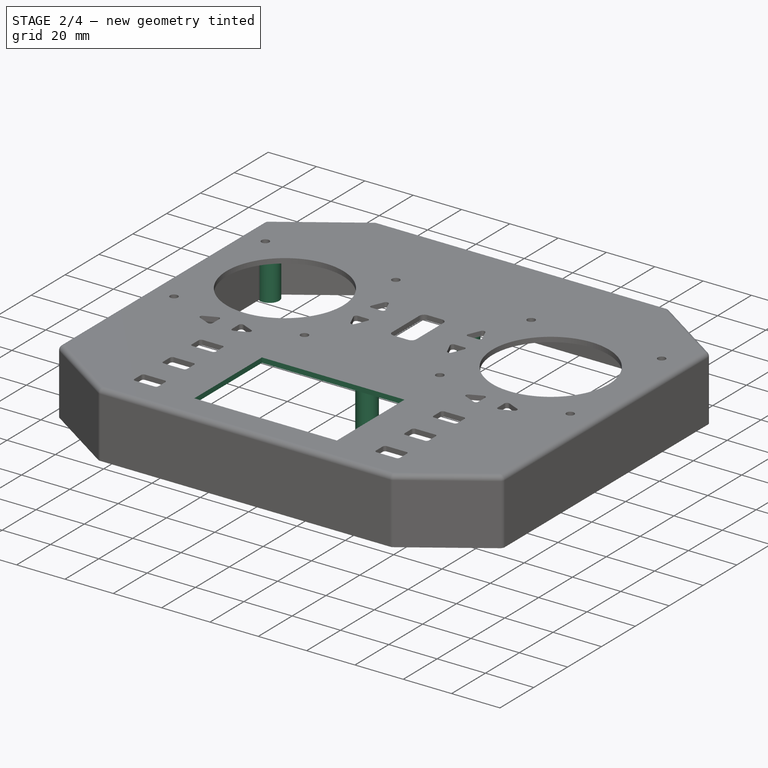
[diagram: stage 2 of 4 — iso view after this stage's code; geometry added in this stage tinted green]
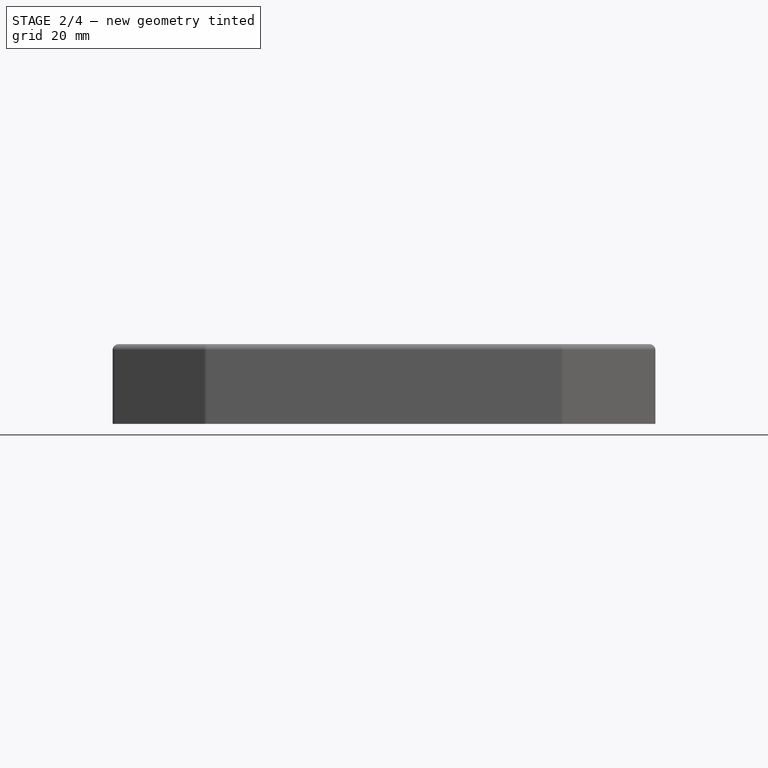
[diagram: stage 2 of 4 — front view after this stage's code; geometry added in this stage tinted green]
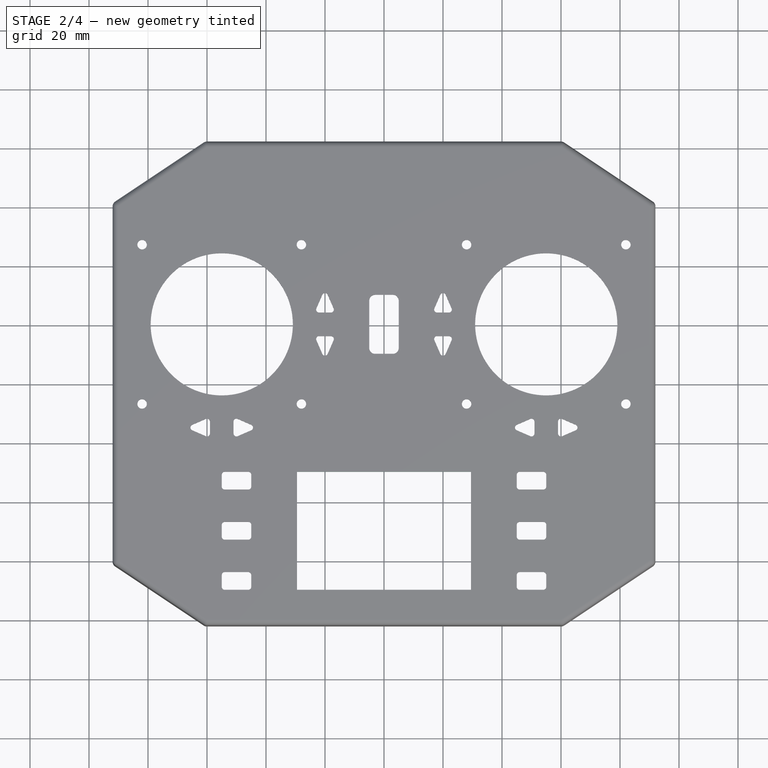
[diagram: stage 2 of 4 — top view after this stage's code; geometry added in this stage tinted green]
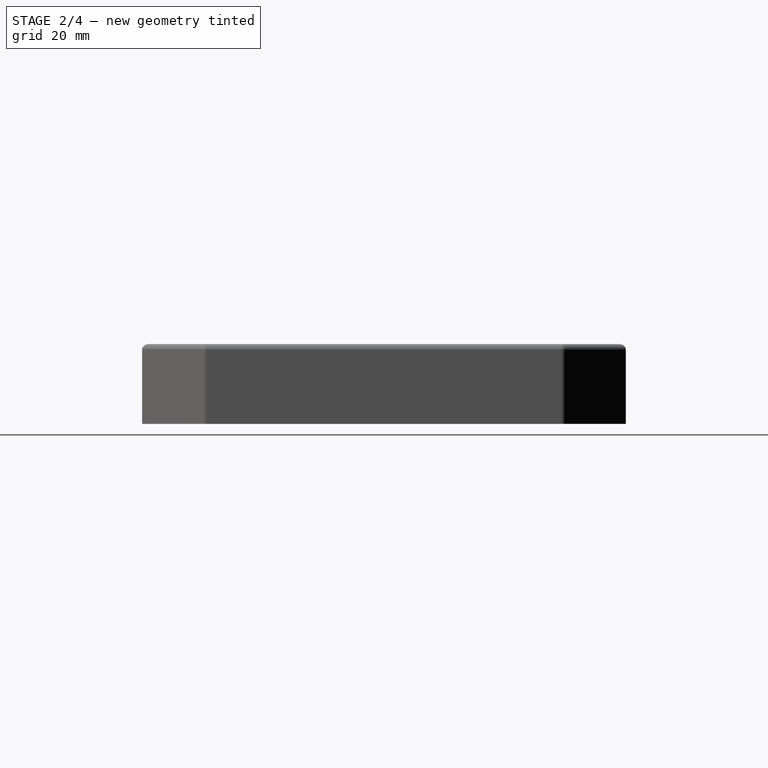
[diagram: stage 2 of 4 — right view after this stage's code; geometry added in this stage tinted green]
FEATURE [PartDesign::Fillet] Fillet
  Base = -> Pocket [Edge13,Edge15,Edge14,Edge11,Edge12,Edge9,Edge3,Edge6]
  BaseFeature = -> Pocket
  Radius = 2
  SupportTransform = false
  expr: Radius = <<body>>.wallFillet
FEATURE [Sketcher::SketchObject] Sketch002
  FullyConstrained = true
  MapMode = 5
  Placement = pos=(0,0,2) rot=(0,0,1;0rad)
  Support = -> [Fillet]
  expr: Constraints[10] = <<body>>.lcdDistanceFromCenter
  expr: Constraints[8] = <<body>>.lcdWidth
  expr: Constraints[7] = <<body>>.lcdHeight
  sketch-geometry (4):
    g0: LineSegment StartX=-29.5 StartY=-30 StartZ=0 EndX=29.5 EndY=-30 EndZ=0
    g1: LineSegment StartX=29.5 StartY=-30 StartZ=0 EndX=29.5 EndY=-70 EndZ=0
    g2: LineSegment StartX=29.5 StartY=-70 StartZ=0 EndX=-29.5 EndY=-70 EndZ=0
    g3: LineSegment StartX=-29.5 StartY=-70 StartZ=0 EndX=-29.5 EndY=-30 EndZ=0
  constraints (11):
    c: Coincident(g0,g1)
    c: Coincident(g1,g2)
    c: Coincident(g2,g3)
    c: Coincident(g3,g0)
    c: Horizontal(g2)
    c: Vertical(g1)
    c: Vertical(g3)
    c: DistanceY(g1,g1) = 40
    c: DistanceX(g0,g0) = 59
    c: Symmetric(g0,g0,g-2)
    c: DistanceY(g0,g-1) = 30
FEATURE [PartDesign::Pocket] Pocket001
  BaseFeature = -> Fillet
  Length = 2
  Length2 = 100
  Profile = -> Sketch002
  Type = 0
  expr: Length = <<body>>.wallWidth
FEATURE [Sketcher::SketchObject] Sketch003
  AttachmentOffset = pos=(0,0,-2) rot=(0,0,1;0rad)
  FullyConstrained = true
  MapMode = 5
  Support = -> [Pocket001]
  expr: Constraints[32] = <<body>>.topMountSpacing
  expr: Constraints[29] = <<body>>.mountOuterDia / 2
  expr: Constraints[25] = <<body>>.width - <<body>>.mountOuterDia + 2 * <<body>>.wallWidth
  expr: Constraints[28] = <<body>>.mountOuterDia / 2
  expr: Constraints[24] = <<body>>.length - <<body>>.mountOuterDia + 2 * <<body>>.wallWidth
  expr: Constraints[19] = <<body>>.mountOuterDia / 2
  expr: Constraints[22] = <<body>>.mountOuterDia / 2
  expr: Constraints[14] = <<body>>.mountOuterDia / 2
  expr: Constraints[17] = <<body>>.mountOuterDia / 2
  expr: Constraints[9] = <<body>>.mountOuterDia / 2
  expr: Constraints[27] = <<body>>.middelMountDistance
  expr: Constraints[13] = <<body>>.mountOuterDia / 2
  expr: Constraints[7] = <<body>>.width - <<body>>.mountOuterDia + 2 * <<body>>.wallWidth
  expr: .AttachmentOffset.Base.z = -<<body>>.wallWidth
  expr: Constraints[16] = <<body>>.mountOuterDia / 2
  expr: Constraints[8] = <<body>>.length - <<body>>.mountOuterDia + 2 * <<body>>.wallWidth
  expr: Constraints[18] = <<body>>.mountOuterDia / 2
  expr: Constraints[10] = <<body>>.mountOuterDia / 2
  expr: Constraints[5] = <<body>>.topLength - <<body>>.mountOuterDia + 2 * <<body>>.wallWidth
  expr: Constraints[15] = <<body>>.mountOuterDia / 2
  expr: Constraints[33] = <<body>>.bottomMountSpacing
  expr: Constraints[12] = <<body>>.mountOuterDia / 2
  expr: Constraints[11] = <<body>>.mountOuterDia / 2
  expr: Constraints[6] = <<body>>.leftLength - <<body>>.mountOuterDia + 2 * <<body>>.wallWidth
  sketch-geometry (14):
    g0: Circle CenterX=-58 CenterY=78 CenterZ=0 NormalX=0 NormalY=0 NormalZ=1 AngleXU=0 Radius=4
    g1: Circle CenterX=58 CenterY=78 CenterZ=0 NormalX=0 NormalY=0 NormalZ=1 AngleXU=0 Radius=4
    g2: Circle CenterX=88 CenterY=58 CenterZ=0 NormalX=0 NormalY=0 NormalZ=1 AngleXU=0 Radius=4
    g3: Circle CenterX=-88 CenterY=58 CenterZ=0 NormalX=0 NormalY=0 NormalZ=1 AngleXU=0 Radius=4
    g4: Circle CenterX=-88 CenterY=-58 CenterZ=0 NormalX=0 NormalY=0 NormalZ=1 AngleXU=0 Radius=4
    g5: Circle CenterX=-58 CenterY=-78 CenterZ=0 NormalX=0 NormalY=0 NormalZ=1 AngleXU=0 Radius=4
    g6: Circle CenterX=58 CenterY=-78 CenterZ=0 NormalX=0 NormalY=0 NormalZ=1 AngleXU=0 Radius=4
    g7: Circle CenterX=88 CenterY=-58 CenterZ=0 NormalX=0 NormalY=0 NormalZ=1 AngleXU=0 Radius=4
    g8: Circle CenterX=0 CenterY=-78 CenterZ=0 NormalX=0 NormalY=0 NormalZ=1 AngleXU=0 Radius=4
    g9: Circle CenterX=0 CenterY=78 CenterZ=0 NormalX=0 NormalY=0 NormalZ=1 AngleXU=0 Radius=4
    g10: Circle CenterX=-88 CenterY=-15 CenterZ=0 NormalX=0 NormalY=0 NormalZ=1 AngleXU=0 Radius=4
    g11: Circle CenterX=88 CenterY=-15 CenterZ=0 NormalX=0 NormalY=0 NormalZ=1 AngleXU=0 Radius=4
    g12: Circle CenterX=0 CenterY=50 CenterZ=0 NormalX=0 NormalY=0 NormalZ=1 AngleXU=0 Radius=4
    g13: Circle CenterX=0 CenterY=-10 CenterZ=0 NormalX=0 NormalY=0 NormalZ=1 AngleXU=0 Radius=4
  constraints (34):
    c: Symmetric(g0,g1,g-2)
    c: Symmetric(g5,g6,g-2)
    c: Symmetric(g2,g7,g-1)
    c: Symmetric(g9,g8,g-1)
    c: Symmetric(g10,g11,g-2)
    c: DistanceX(g0,g1) = 116
    c: DistanceY(g4,g3) = 116
    c: DistanceY(g8,g9) = 156
    c: DistanceX(g10,g11) = 176
    c: Radius(g1) = 4
    c: Radius(g9) = 4
    c: Radius(g0) = 4
    c: Radius(g3) = 4
    c: Radius(g10) = 4
    c: Radius(g4) = 4
    c: Radius(g5) = 4
    c: Radius(g8) = 4
    c: Radius(g6) = 4
    c: Radius(g7) = 4
    c: Radius(g11) = 4
    c: Symmetric(g0,g5,g-1)
    c: Symmetric(g3,g4,g-1)
    c: Radius(g2) = 4
    c: Symmetric(g3,g2,g-2)
    c: DistanceX(g3,g2) = 176
    c: DistanceY(g5,g0) = 156
    c: DistanceX(g9,g-1) = 0
    c: DistanceY(g11,g-1) = 15
    c: Radius(g12) = 4
    c: Radius(g13) = 4
    c: DistanceX(g12,g-1) = 0
    c: DistanceX(g13,g-1) = 0
    c: DistanceY(g-1,g12) = 50
    c: DistanceY(g13,g-1) = 10
FEATURE [PartDesign::Pad] Pad
  BaseFeature = -> Pocket001
  Direction = (1,1,1)
  Length = 25
  Length2 = 100
  Profile = -> Sketch003
  Reversed = true
  Type = 0
  expr: Length = <<body>>.topDepth
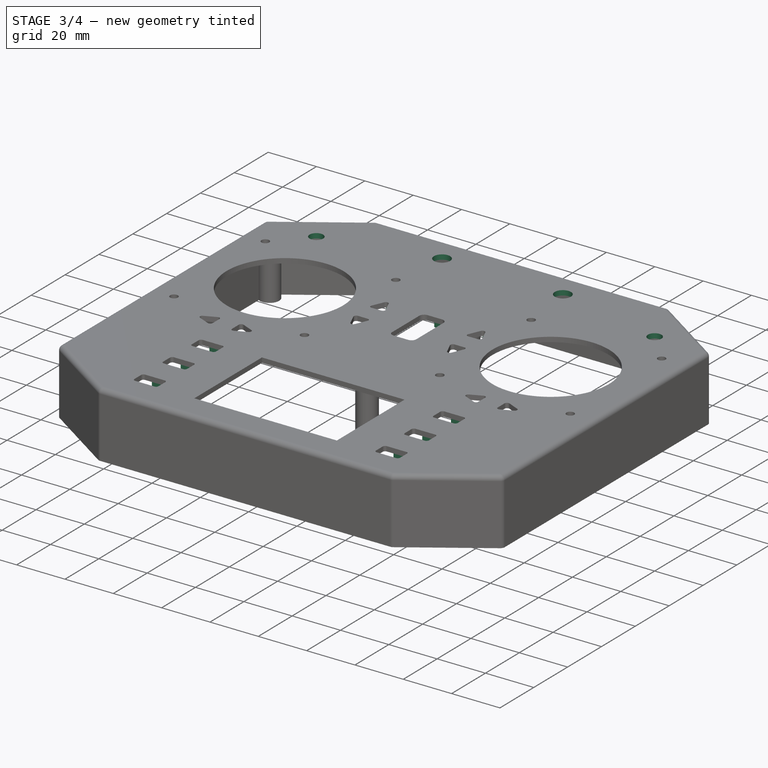
[diagram: stage 3 of 4 — iso view after this stage's code; geometry added in this stage tinted green]
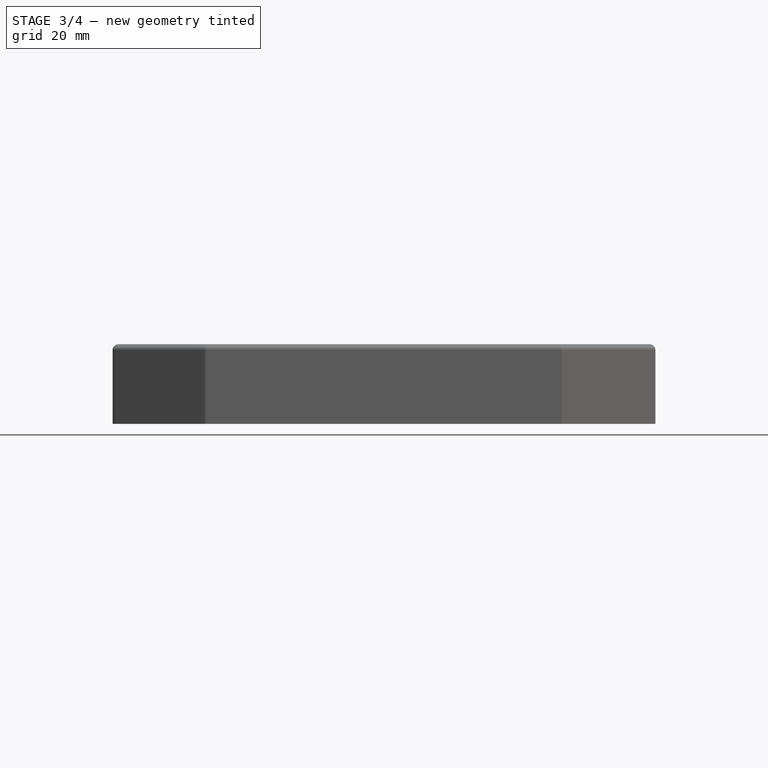
[diagram: stage 3 of 4 — front view after this stage's code; geometry added in this stage tinted green]
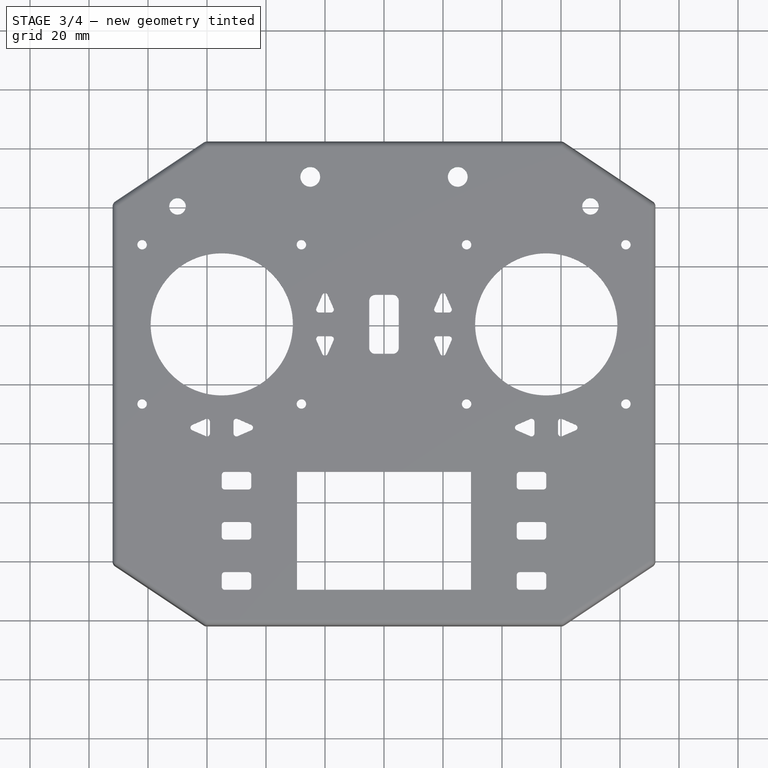
[diagram: stage 3 of 4 — top view after this stage's code; geometry added in this stage tinted green]
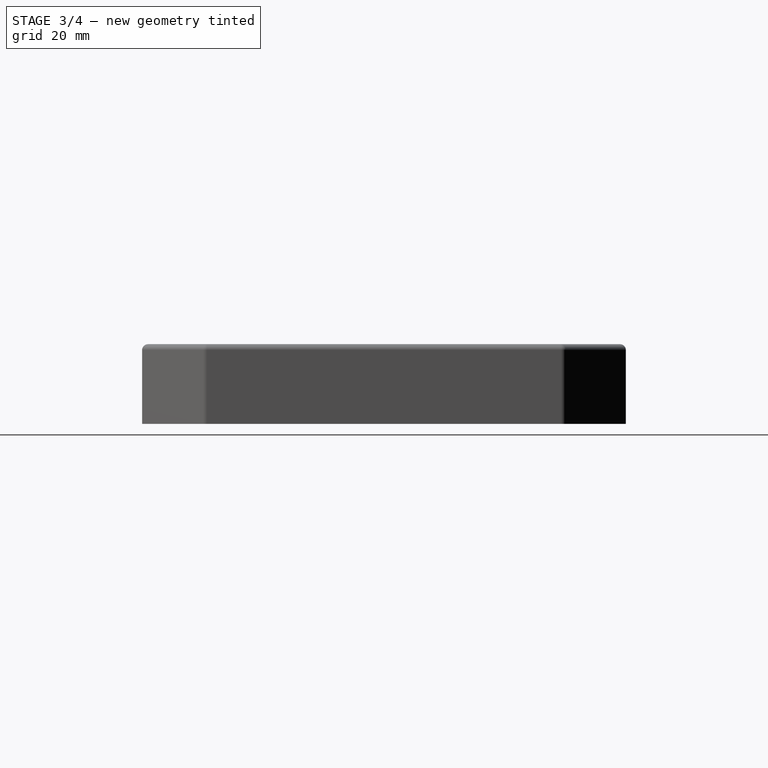
[diagram: stage 3 of 4 — right view after this stage's code; geometry added in this stage tinted green]
FEATURE [PartDesign::Hole] Hole
  BaseFeature = -> Pad
  Depth = 25
  DepthType = 0
  Diameter = 3.2
  DrillForDepth = false
  DrillPoint = 1
  DrillPointAngle = 118
  HoleCutCountersinkAngle = 90
  HoleCutCustomValues = false
  HoleCutDepth = 0
  HoleCutDiameter = 6.1
  HoleCutType = 0
  ModelActualThread = false
  Profile = -> Sketch003
  Tapered = false
  TaperedAngle = 90
  ThreadAngle = 0
  ThreadClass = 0
  ThreadCutOffInner = 0
  ThreadCutOffOuter = 0
  ThreadDirection = 0
  ThreadFit = 0
  ThreadPitch = 0
  ThreadSize = 0
  ThreadType = 0
  Threaded = false
  expr: Depth = <<body>>.topDepth
  expr: Diameter = <<body>>.mountInnerDia
FEATURE [PartDesign::Fillet] Fillet001
  Base = -> Hole [Edge115,Edge177]
  BaseFeature = -> Hole
  Radius = 2
  SupportTransform = false
  expr: Radius = <<body>>.wallFillet
FEATURE [Sketcher::SketchObject] Sketch005
  AttachmentOffset = pos=(0,0,-2) rot=(0,0,1;0rad)
  FullyConstrained = true
  MapMode = 5
  Support = -> [Fillet001]
  expr: Constraints[243] = <<body>>.buttonMountSize / 2
  expr: Constraints[241] = <<body>>.buttonMountSize / 2
  expr: Constraints[240] = <<body>>.buttonMountSize / 2
  expr: Constraints[238] = <<body>>.buttonMountSize / 2
  expr: Constraints[237] = <<body>>.buttonMountSize / 2
  expr: Constraints[233] = <<body>>.buttonMountSize / 2
  expr: Constraints[228] = <<body>>.buttonMountSize / 2
  expr: Constraints[242] = <<body>>.buttonMountSize / 2
  expr: Constraints[234] = <<body>>.buttonMountSize / 2
  expr: Constraints[227] = <<body>>.buttonMountSize / 2
  expr: Constraints[226] = <<body>>.buttonMountSize / 2
  expr: Constraints[215] = <<body>>.mountInnerDia / 2
  expr: Constraints[213] = <<body>>.mountInnerDia / 2
  expr: Constraints[239] = <<body>>.buttonMountSize / 2
  expr: Constraints[210] = <<body>>.mountInnerDia / 2
  expr: Constraints[236] = <<body>>.buttonMountSize / 2
  expr: Constraints[208] = <<body>>.mountInnerDia / 2
  expr: Constraints[206] = <<body>>.mountInnerDia / 2
  expr: Constraints[205] = <<body>>.mountInnerDia / 2
  expr: Constraints[204] = <<body>>.mountInnerDia / 2
  expr: Constraints[202] = <<body>>.mountInnerDia / 2
  expr: Constraints[201] = <<body>>.mountInnerDia / 2
  expr: Constraints[216] = <<body>>.mountInnerDia / 2
  expr: Constraints[225] = <<body>>.buttonMountSize / 2
  expr: Constraints[231] = <<body>>.buttonMountSize / 2
  expr: .AttachmentOffset.Base.z = -<<body>>.wallWidth
  expr: Constraints[178] = <<body>>.menuButtonSpacing + <<body>>.menuButtonHeight - <<body>>.buttonMountSize
  expr: Constraints[207] = <<body>>.mountInnerDia / 2
  expr: Constraints[181] = 2 * <<body>>.trimButtonDistance + 2 * <<body>>.trimButtonHeight
  expr: Constraints[192] = <<body>>.gimbalDistance / 2 - <<body>>.trimButtonDistance - <<body>>.trimButtonHeight
  expr: Constraints[203] = <<body>>.mountInnerDia / 2
  expr: Constraints[244] = <<body>>.buttonMountSize / 2
  expr: Constraints[193] = (<<body>>.menuButtonDistance + <<body>>.menuButtonWidth - <<body>>.buttonMountSize) / 2
  expr: Constraints[235] = <<body>>.buttonMountSize / 2
  expr: Constraints[232] = <<body>>.buttonMountSize / 2
  expr: Constraints[157] = <<body>>.gimbalDistance - 2 * <<body>>.trimDistanceFromGimbal - <<body>>.trimButtonWidth - <<body>>.buttonMountSize
  expr: Constraints[229] = <<body>>.buttonMountSize / 2
  expr: Constraints[200] = <<body>>.mountInnerDia / 2
  expr: Constraints[199] = <<body>>.mountInnerDia / 2
  expr: Constraints[209] = <<body>>.mountInnerDia / 2
  expr: Constraints[179] = <<body>>.menuButtonSpacing + <<body>>.menuButtonHeight - <<body>>.buttonMountSize
  expr: Constraints[211] = <<body>>.mountInnerDia / 2
  expr: Constraints[230] = <<body>>.buttonMountSize / 2
  expr: Constraints[197] = <<body>>.buttonMountSize
  expr: Constraints[182] = <<body>>.trimDistanceFromGimbal - <<body>>.gimbalCenterSpacing - (<<body>>.buttonMountSize - <<body>>.trimButtonWidth) / 2
  expr: Constraints[214] = <<body>>.mountInnerDia / 2
  expr: Constraints[180] = <<body>>.menuButtonSpacing + <<body>>.menuButtonHeight - <<body>>.buttonMountSize
  expr: Constraints[190] = <<body>>.powerButtonHeight + <<body>>.trimButtonDistance
  expr: Constraints[212] = <<body>>.mountInnerDia / 2
  expr: Constraints[191] = <<body>>.powerButtonDistanceFromCenter - <<body>>.trimButtonDistance / 2
  expr: Constraints[194] = <<body>>.menuDistanceFromCenter - (<<body>>.menuButtonSpacing - <<body>>.menuButtonHeight) / 2
  sketch-geometry (90):
    g0: LineSegment StartX=-53 StartY=-38.5 StartZ=0 EndX=-47 EndY=-38.5 EndZ=0
    g1: LineSegment StartX=-47 StartY=-38.5 StartZ=0 EndX=-47 EndY=-44.5 EndZ=0
    g2: LineSegment StartX=-47 StartY=-44.5 StartZ=0 EndX=-53 EndY=-44.5 EndZ=0
    g3: LineSegment StartX=-53 StartY=-44.5 StartZ=0 EndX=-53 EndY=-38.5 EndZ=0
    g4: LineSegment StartX=-53 StartY=-55.5 StartZ=0 EndX=-47 EndY=-55.5 EndZ=0
    g5: LineSegment StartX=-47 StartY=-55.5 StartZ=0 EndX=-47 EndY=-61.5 EndZ=0
    g6: LineSegment StartX=-47 StartY=-61.5 StartZ=0 EndX=-53 EndY=-61.5 EndZ=0
    g7: LineSegment StartX=-53 StartY=-61.5 StartZ=0 EndX=-53 EndY=-55.5 EndZ=0
    g8: LineSegment StartX=-53 StartY=-72.5 StartZ=0 EndX=-47 EndY=-72.5 EndZ=0
    g9: LineSegment StartX=-47 StartY=-72.5 StartZ=0 EndX=-47 EndY=-78.5 EndZ=0
    g10: LineSegment StartX=-47 StartY=-78.5 StartZ=0 EndX=-53 EndY=-78.5 EndZ=0
    g11: LineSegment StartX=-53 StartY=-78.5 StartZ=0 EndX=-53 EndY=-72.5 EndZ=0
    g12: LineSegment StartX=47 StartY=-38.5 StartZ=0 EndX=53 EndY=-38.5 EndZ=0
    g13: LineSegment StartX=53 StartY=-38.5 StartZ=0 EndX=53 EndY=-44.5 EndZ=0
    g14: LineSegment StartX=53 StartY=-44.5 StartZ=0 EndX=47 EndY=-44.5 EndZ=0
    g15: LineSegment StartX=47 StartY=-44.5 StartZ=0 EndX=47 EndY=-38.5 EndZ=0
    g16: LineSegment StartX=47 StartY=-55.5 StartZ=0 EndX=53 EndY=-55.5 EndZ=0
    g17: LineSegment StartX=53 StartY=-55.5 StartZ=0 EndX=53 EndY=-61.5 EndZ=0
    g18: LineSegment StartX=53 StartY=-61.5 StartZ=0 EndX=47 EndY=-61.5 EndZ=0
    g19: LineSegment StartX=47 StartY=-61.5 StartZ=0 EndX=47 EndY=-55.5 EndZ=0
    g20: LineSegment StartX=47 StartY=-72.5 StartZ=0 EndX=53 EndY=-72.5 EndZ=0
    g21: LineSegment StartX=53 StartY=-72.5 StartZ=0 EndX=53 EndY=-78.5 EndZ=0
    g22: LineSegment StartX=53 StartY=-78.5 StartZ=0 EndX=47 EndY=-78.5 EndZ=0
    g23: LineSegment StartX=47 StartY=-78.5 StartZ=0 EndX=47 EndY=-72.5 EndZ=0
    g24: LineSegment StartX=-23 StartY=40 StartZ=0 EndX=-17 EndY=40 EndZ=0
    g25: LineSegment StartX=-17 StartY=40 StartZ=0 EndX=-17 EndY=34 EndZ=0
    g26: LineSegment StartX=-17 StartY=34 StartZ=0 EndX=-23 EndY=34 EndZ=0
    g27: LineSegment StartX=-23 StartY=34 StartZ=0 EndX=-23 EndY=40 EndZ=0
    g28: LineSegment StartX=-23 StartY=6 StartZ=0 EndX=-17 EndY=6 EndZ=0
    g29: LineSegment StartX=-17 StartY=6 StartZ=0 EndX=-17 EndY=0 EndZ=0
    g30: LineSegment StartX=-17 StartY=0 StartZ=0 EndX=-23 EndY=0 EndZ=0
    g31: LineSegment StartX=-23 StartY=0 StartZ=0 EndX=-23 EndY=6 EndZ=0
    g32: LineSegment StartX=-3 StartY=40 StartZ=0 EndX=3 EndY=40 EndZ=0
    g33: LineSegment StartX=3 StartY=40 StartZ=0 EndX=3 EndY=34 EndZ=0
    g34: LineSegment StartX=3 StartY=34 StartZ=0 EndX=-3 EndY=34 EndZ=0
    g35: LineSegment StartX=-3 StartY=34 StartZ=0 EndX=-3 EndY=40 EndZ=0
    g36: LineSegment StartX=-3 StartY=6 StartZ=0 EndX=3 EndY=6 EndZ=0
    g37: LineSegment StartX=3 StartY=6 StartZ=0 EndX=3 EndY=0 EndZ=0
    g38: LineSegment StartX=3 StartY=0 StartZ=0 EndX=-3 EndY=0 EndZ=0
    g39: LineSegment StartX=-3 StartY=0 StartZ=0 EndX=-3 EndY=6 EndZ=0
    g40: LineSegment StartX=17 StartY=40 StartZ=0 EndX=23 EndY=40 EndZ=0
    g41: LineSegment StartX=23 StartY=40 StartZ=0 EndX=23 EndY=34 EndZ=0
    g42: LineSegment StartX=23 StartY=34 StartZ=0 EndX=17 EndY=34 EndZ=0
    g43: LineSegment StartX=17 StartY=34 StartZ=0 EndX=17 EndY=40 EndZ=0
    g44: LineSegment StartX=17 StartY=6 StartZ=0 EndX=23 EndY=6 EndZ=0
    g45: LineSegment StartX=23 StartY=6 StartZ=0 EndX=23 EndY=0 EndZ=0
    g46: LineSegment StartX=23 StartY=0 StartZ=0 EndX=17 EndY=0 EndZ=0
    g47: LineSegment StartX=17 StartY=0 StartZ=0 EndX=17 EndY=6 EndZ=0
    g48: LineSegment StartX=-75 StartY=-12 StartZ=0 EndX=-69 EndY=-12 EndZ=0
    g49: LineSegment StartX=-69 StartY=-12 StartZ=0 EndX=-69 EndY=-18 EndZ=0
    g50: LineSegment StartX=-69 StartY=-18 StartZ=0 EndX=-75 EndY=-18 EndZ=0
    g51: LineSegment StartX=-75 StartY=-18 StartZ=0 EndX=-75 EndY=-12 EndZ=0
    g52: LineSegment StartX=-41 StartY=-12 StartZ=0 EndX=-35 EndY=-12 EndZ=0
    g53: LineSegment StartX=-35 StartY=-12 StartZ=0 EndX=-35 EndY=-18 EndZ=0
    g54: LineSegment StartX=-35 StartY=-18 StartZ=0 EndX=-41 EndY=-18 EndZ=0
    g55: LineSegment StartX=-41 StartY=-18 StartZ=0 EndX=-41 EndY=-12 EndZ=0
    g56: LineSegment StartX=35 StartY=-12 StartZ=0 EndX=41 EndY=-12 EndZ=0
    g57: LineSegment StartX=41 StartY=-12 StartZ=0 EndX=41 EndY=-18 EndZ=0
    g58: LineSegment StartX=41 StartY=-18 StartZ=0 EndX=35 EndY=-18 EndZ=0
    g59: LineSegment StartX=35 StartY=-18 StartZ=0 EndX=35 EndY=-12 EndZ=0
    g60: LineSegment StartX=69 StartY=-12 StartZ=0 EndX=75 EndY=-12 EndZ=0
    g61: LineSegment StartX=75 StartY=-12 StartZ=0 EndX=75 EndY=-18 EndZ=0
    g62: LineSegment StartX=75 StartY=-18 StartZ=0 EndX=69 EndY=-18 EndZ=0
    g63: LineSegment StartX=69 StartY=-18 StartZ=0 EndX=69 EndY=-12 EndZ=0
    g64: LineSegment StartX=-53 StartY=-21.5 StartZ=0 EndX=-47 EndY=-21.5 EndZ=0
    g65: LineSegment StartX=-47 StartY=-21.5 StartZ=0 EndX=-47 EndY=-27.5 EndZ=0
    g66: LineSegment StartX=-47 StartY=-27.5 StartZ=0 EndX=-53 EndY=-27.5 EndZ=0
    g67: LineSegment StartX=-53 StartY=-27.5 StartZ=0 EndX=-53 EndY=-21.5 EndZ=0
    g68: LineSegment StartX=47 StartY=-21.5 StartZ=0 EndX=53 EndY=-21.5 EndZ=0
    g69: LineSegment StartX=53 StartY=-21.5 StartZ=0 EndX=53 EndY=-27.5 EndZ=0
    g70: LineSegment StartX=53 StartY=-27.5 StartZ=0 EndX=47 EndY=-27.5 EndZ=0
    g71: LineSegment StartX=47 StartY=-27.5 StartZ=0 EndX=47 EndY=-21.5 EndZ=0
    g72: Circle CenterX=-20 CenterY=37 CenterZ=0 NormalX=0 NormalY=0 NormalZ=1 AngleXU=0 Radius=1.6
    g73: Circle CenterX=-1e-16 CenterY=37 CenterZ=0 NormalX=0 NormalY=0 NormalZ=1 AngleXU=0 Radius=1.6
    g74: Circle CenterX=20 CenterY=37 CenterZ=0 NormalX=0 NormalY=0 NormalZ=1 AngleXU=0 Radius=1.6
    g75: Circle CenterX=-20 CenterY=3 CenterZ=0 NormalX=0 NormalY=0 NormalZ=1 AngleXU=0 Radius=1.6
    g76: Circle CenterX=-2e-16 CenterY=3 CenterZ=0 NormalX=0 NormalY=0 NormalZ=1 AngleXU=0 Radius=1.6
    g77: Circle CenterX=20 CenterY=3 CenterZ=0 NormalX=0 NormalY=0 NormalZ=1 AngleXU=0 Radius=1.6
    g78: Circle CenterX=38 CenterY=-15 CenterZ=0 NormalX=0 NormalY=0 NormalZ=1 AngleXU=0 Radius=1.6
    g79: Circle CenterX=72 CenterY=-15 CenterZ=0 NormalX=0 NormalY=0 NormalZ=1 AngleXU=0 Radius=1.6
    g80: Circle CenterX=50 CenterY=-24.5 CenterZ=0 NormalX=0 NormalY=0 NormalZ=1 AngleXU=0 Radius=1.6
    g81: Circle CenterX=50 CenterY=-41.5 CenterZ=0 NormalX=0 NormalY=0 NormalZ=1 AngleXU=0 Radius=1.6
    g82: Circle CenterX=50 CenterY=-58.5 CenterZ=0 NormalX=0 NormalY=0 NormalZ=1 AngleXU=0 Radius=1.6
    g83: Circle CenterX=50 CenterY=-75.5 CenterZ=0 NormalX=0 NormalY=0 NormalZ=1 AngleXU=0 Radius=1.6
    g84: Circle CenterX=-72 CenterY=-15 CenterZ=0 NormalX=0 NormalY=0 NormalZ=1 AngleXU=0 Radius=1.6
    g85: Circle CenterX=-38 CenterY=-15 CenterZ=0 NormalX=0 NormalY=0 NormalZ=1 AngleXU=0 Radius=1.6
    g86: Circle CenterX=-50 CenterY=-24.5 CenterZ=0 NormalX=0 NormalY=0 NormalZ=1 AngleXU=0 Radius=1.6
    g87: Circle CenterX=-50 CenterY=-41.5 CenterZ=0 NormalX=0 NormalY=0 NormalZ=1 AngleXU=0 Radius=1.6
    g88: Circle CenterX=-50 CenterY=-58.5 CenterZ=0 NormalX=0 NormalY=0 NormalZ=1 AngleXU=0 Radius=1.6
    g89: Circle CenterX=-50 CenterY=-75.5 CenterZ=0 NormalX=0 NormalY=0 NormalZ=1 AngleXU=0 Radius=1.6
  constraints (245):
    c: Coincident(g0,g1)
    c: Coincident(g1,g2)
    c: Coincident(g2,g3)
    c: Coincident(g3,g0)
    c: Horizontal(g0)
    c: Horizontal(g2)
    c: Vertical(g1)
    c: Vertical(g3)
    c: Coincident(g4,g5)
    c: Coincident(g5,g6)
    c: Coincident(g6,g7)
    c: Coincident(g7,g4)
    c: Horizontal(g4)
    c: Horizontal(g6)
    c: Vertical(g5)
    c: Coincident(g8,g9)
    c: Coincident(g9,g10)
    c: Coincident(g10,g11)
    c: Coincident(g11,g8)
    c: Horizontal(g8)
    c: Horizontal(g10)
    c: Vertical(g11)
    c: Coincident(g12,g13)
    c: Coincident(g13,g14)
    c: Coincident(g14,g15)
    c: Coincident(g15,g12)
    c: Horizontal(g12)
    c: Horizontal(g14)
    c: Vertical(g13)
    c: Vertical(g15)
    c: Coincident(g16,g17)
    c: Coincident(g17,g18)
    c: Coincident(g18,g19)
    c: Coincident(g19,g16)
    c: Horizontal(g16)
    c: Horizontal(g18)
    c: Vertical(g17)
    c: Vertical(g19)
    c: Coincident(g20,g21)
    c: Coincident(g21,g22)
    c: Coincident(g22,g23)
    c: Coincident(g23,g20)
    c: Horizontal(g20)
    c: Horizontal(g22)
    c: Vertical(g21)
    c: Vertical(g23)
    c: Equal(g0,g3)
    c: Equal(g3,g4)
    c: Equal(g4,g7)
    c: Equal(g7,g8)
    c: Equal(g8,g11)
    c: Equal(g12,g15)
    c: Equal(g15,g16)
    c: Equal(g16,g19)
    c: Equal(g19,g20)
    c: Equal(g20,g23)
    c: Coincident(g24,g25)
    c: Coincident(g25,g26)
    c: Coincident(g26,g27)
    c: Coincident(g27,g24)
    c: Horizontal(g24)
    c: Vertical(g25)
    c: Vertical(g27)
    c: Coincident(g28,g29)
    c: Coincident(g29,g30)
    c: Coincident(g30,g31)
    c: Coincident(g31,g28)
    c: Horizontal(g28)
    c: Horizontal(g30)
    c: Vertical(g29)
    c: Vertical(g31)
    c: Coincident(g32,g33)
    c: Coincident(g33,g34)
    c: Coincident(g34,g35)
    c: Coincident(g35,g32)
    c: Horizontal(g32)
    c: Vertical(g33)
    c: Vertical(g35)
    c: Coincident(g36,g37)
    c: Coincident(g37,g38)
    c: Coincident(g38,g39)
    c: Coincident(g39,g36)
    c: Horizontal(g38)
    c: Vertical(g37)
    c: Vertical(g39)
    c: Coincident(g40,g41)
    c: Coincident(g41,g42)
    c: Coincident(g42,g43)
    c: Coincident(g43,g40)
    c: Horizontal(g40)
    c: Horizontal(g42)
    c: Vertical(g41)
    c: Vertical(g43)
    c: Coincident(g44,g45)
    c: Coincident(g45,g46)
    c: Coincident(g46,g47)
    c: Coincident(g47,g44)
    c: Horizontal(g44)
    c: Vertical(g47)
    c: Equal(g26,g25)
    c: Equal(g25,g35)
    c: Equal(g35,g32)
    c: Equal(g32,g40)
    c: Equal(g40,g43)
    c: Equal(g44,g47)
    c: Equal(g47,g36)
    c: Equal(g36,g39)
    c: Equal(g39,g28)
    c: Equal(g28,g31)
    c: Symmetric(g1,g14,g-2)
    c: Symmetric(g5,g18,g-2)
    c: Symmetric(g9,g22,g-2)
    c: Symmetric(g29,g46,g-2)
    c: Symmetric(g25,g42,g-2)
    c: Equal(g24,g28)
    c: Symmetric(g34,g33,g-2)
    c: Symmetric(g36,g36,g-2)
    c: Coincident(g48,g49)
    c: Coincident(g49,g50)
    c: Coincident(g50,g51)
    c: Coincident(g51,g48)
    c: Horizontal(g48)
    c: Horizontal(g50)
    c: Vertical(g49)
    c: Vertical(g51)
    c: Coincident(g52,g53)
    c: Coincident(g53,g54)
    c: Coincident(g54,g55)
    c: Coincident(g55,g52)
    c: Horizontal(g52)
    c: Vertical(g53)
    c: Vertical(g55)
    c: Coincident(g56,g57)
    c: Coincident(g57,g58)
    c: Coincident(g58,g59)
    c: Coincident(g59,g56)
    c: Horizontal(g56)
    c: Horizontal(g58)
    c: Vertical(g57)
    c: Vertical(g59)
    c: Coincident(g60,g61)
    c: Coincident(g61,g62)
    c: Coincident(g62,g63)
    c: Coincident(g63,g60)
    c: Horizontal(g60)
    c: Horizontal(g62)
    c: Vertical(g61)
    c: Vertical(g63)
    c: Equal(g51,g48)
    c: Equal(g48,g55)
    c: Equal(g55,g52)
    c: Equal(g52,g59)
    c: Equal(g59,g56)
    c: Equal(g56,g63)
    c: Equal(g63,g60)
    c: Symmetric(g53,g58,g-2)
    c: Symmetric(g49,g62,g-2)
    c: DistanceX(g28,g44) = 34
    c: Coincident(g64,g65)
    c: Coincident(g65,g66)
    c: Coincident(g66,g67)
    c: Coincident(g67,g64)
    c: Horizontal(g64)
    c: Horizontal(g66)
    c: Vertical(g67)
    c: Coincident(g68,g69)
    c: Coincident(g69,g70)
    c: Coincident(g70,g71)
    c: Coincident(g71,g68)
    c: Horizontal(g68)
    c: Horizontal(g70)
    c: Vertical(g69)
    c: Vertical(g71)
    c: Equal(g64,g67)
    c: Equal(g67,g0)
    c: Equal(g0,g68)
    c: Equal(g68,g71)
    c: Symmetric(g65,g70,g-2)
    c: DistanceY(g0,g66) = 11
    c: DistanceY(g4,g2) = 11
    c: DistanceY(g8,g6) = 11
    c: DistanceX(g48,g52) = 28
    c: DistanceY(g52,g-1) = 12
    c: Tangent(g65,g1)
    c: Tangent(g5,g9)
    c: Tangent(g3,g7)
    c: Tangent(g50,g54)
    c: Tangent(g41,g45)
    c: Tangent(g38,g46)
    c: Tangent(g26,g34)
    c: DistanceY(g36,g33) = 28
    c: DistanceY(g-1,g36) = 6
    c: DistanceX(g54,g-1) = 41
    c: DistanceX(g9,g-1) = 47
    c: DistanceY(g65,g-1) = 27.5
    c: Equal(g30,g52)
    c: Equal(g54,g64)
    c: DistanceX(g36,g36) = 6
    c: Equal(g13,g69)
    c: Radius(g72) = 1.6
    c: Radius(g73) = 1.6
    c: Radius(g74) = 1.6
    c: Radius(g75) = 1.6
    c: Radius(g76) = 1.6
    c: Radius(g77) = 1.6
    c: Radius(g84) = 1.6
    c: Radius(g85) = 1.6
    c: Radius(g86) = 1.6
    c: Radius(g87) = 1.6
    c: Radius(g88) = 1.6
    c: Radius(g89) = 1.6
    c: Radius(g78) = 1.6
    c: Radius(g79) = 1.6
    c: Radius(g80) = 1.6
    c: Radius(g81) = 1.6
    c: Radius(g82) = 1.6
    c: Radius(g83) = 1.6
    c: Symmetric(g89,g83,g-2)
    c: Symmetric(g88,g82,g-2)
    c: Symmetric(g87,g81,g-2)
    c: Symmetric(g86,g80,g-2)
    c: Symmetric(g85,g78,g-2)
    c: Symmetric(g84,g79,g-2)
    c: Symmetric(g75,g77,g-2)
    c: Symmetric(g72,g74,g-2)
    c: DistanceX(g72,g24) = 3
    c: DistanceX(g32,g73) = 3
    c: DistanceX(g75,g28) = 3
    c: DistanceX(g36,g76) = 3
    c: DistanceX(g52,g85) = 3
    c: DistanceX(g84,g48) = 3
    c: DistanceX(g86,g64) = 3
    c: DistanceX(g87,g0) = 3
    c: DistanceX(g88,g4) = 3
    c: DistanceX(g89,g8) = 3
    c: DistanceY(g89,g8) = 3
    c: DistanceY(g88,g4) = 3
    c: DistanceY(g87,g0) = 3
    c: DistanceY(g86,g64) = 3
    c: DistanceY(g85,g52) = 3
    c: DistanceY(g84,g48) = 3
    c: DistanceY(g75,g28) = 3
    c: DistanceY(g76,g36) = 3
    c: DistanceY(g72,g24) = 3
    c: DistanceY(g73,g32) = 3
FEATURE [PartDesign::Pad] Pad002
  BaseFeature = -> Fillet001
  Direction = (1,1,1)
  Length = 4
  Length2 = 100
  Profile = -> Sketch005
  Reversed = true
  Type = 0
  expr: Length = <<body>>.buttonMountDepth
FEATURE [Sketcher::SketchObject] Sketch006
  FullyConstrained = true
  MapMode = 5
  Placement = pos=(0,0,2) rot=(0,0,1;0rad)
  Support = -> [Pad002]
  expr: Constraints[9] = <<body>>.potSpacing
  expr: Constraints[8] = <<body>>.width / 2 - <<body>>.potBoundaryOffset
  expr: Constraints[6] = <<body>>.potDia / 2
  expr: Constraints[5] = <<body>>.potDia / 2
  expr: Constraints[4] = <<body>>.leftLength / 2 + (<<body>>.width - <<body>>.leftLength) / 4 - <<body>>.toggleSwitchBoundaryOffset
  expr: Constraints[3] = (<<body>>.length + <<body>>.topLength) / 2 - <<body>>.toggleSwitchBoundaryOffset
  expr: Constraints[1] = <<body>>.toggleSwitchDia / 2
  expr: Constraints[0] = <<body>>.toggleSwitchDia / 2
  sketch-geometry (4):
    g0: Circle CenterX=-70 CenterY=60 CenterZ=0 NormalX=0 NormalY=0 NormalZ=1 AngleXU=0 Radius=2.8
    g1: Circle CenterX=70 CenterY=60 CenterZ=0 NormalX=0 NormalY=0 NormalZ=1 AngleXU=0 Radius=2.8
    g2: Circle CenterX=-25 CenterY=70 CenterZ=0 NormalX=0 NormalY=0 NormalZ=1 AngleXU=0 Radius=3.35
    g3: Circle CenterX=25 CenterY=70 CenterZ=0 NormalX=0 NormalY=0 NormalZ=1 AngleXU=0 Radius=3.35
  constraints (10):
    c: Radius(g0) = 2.8
    c: Radius(g1) = 2.8
    c: Symmetric(g0,g1,g-2)
    c: DistanceX(g0,g1) = 140
    c: DistanceY(g-1,g0) = 60
    c: Radius(g2) = 3.35
    c: Radius(g3) = 3.35
    c: Symmetric(g2,g3,g-2)
    c: DistanceY(g-1,g2) = 70
    c: DistanceX(g2,g3) = 50
FEATURE [PartDesign::Pocket] Pocket002
  BaseFeature = -> Pad002
  Length = 2
  Length2 = 100
  Profile = -> Sketch006
  Type = 0
  expr: Length = <<body>>.wallWidth
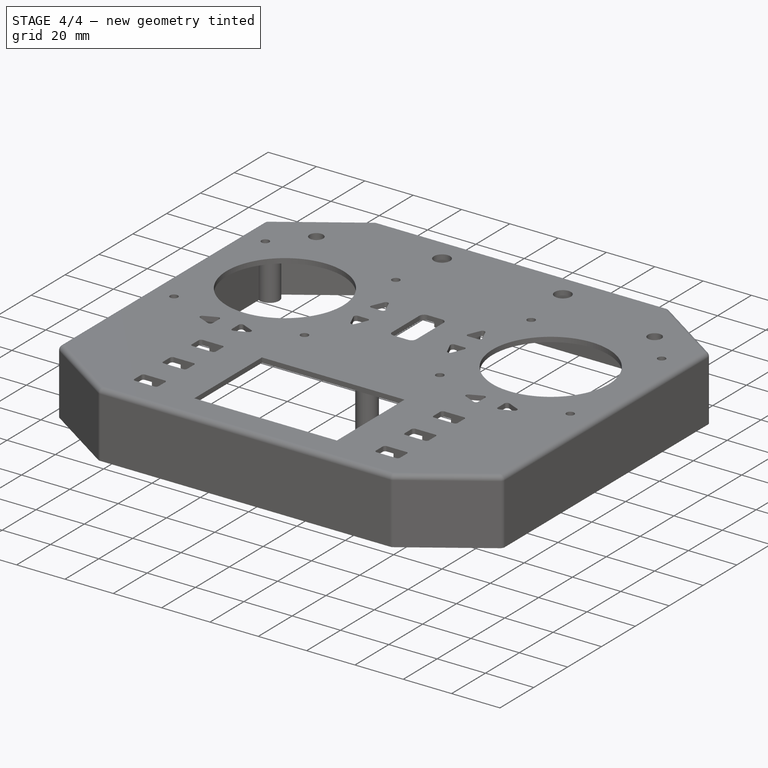
[diagram: stage 4 of 4 — iso view after this stage's code; geometry added in this stage tinted green]
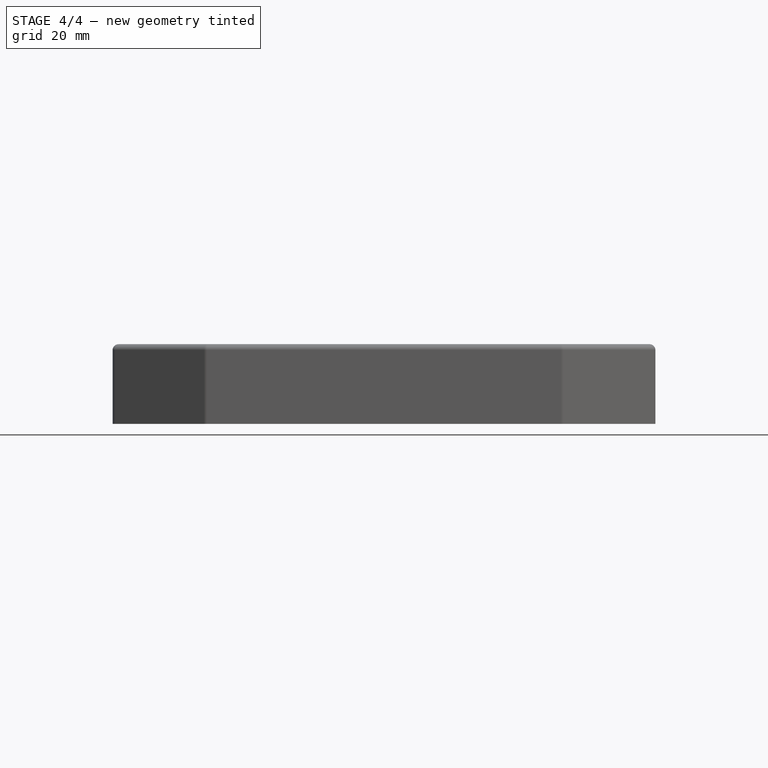
[diagram: stage 4 of 4 — front view after this stage's code; geometry added in this stage tinted green]
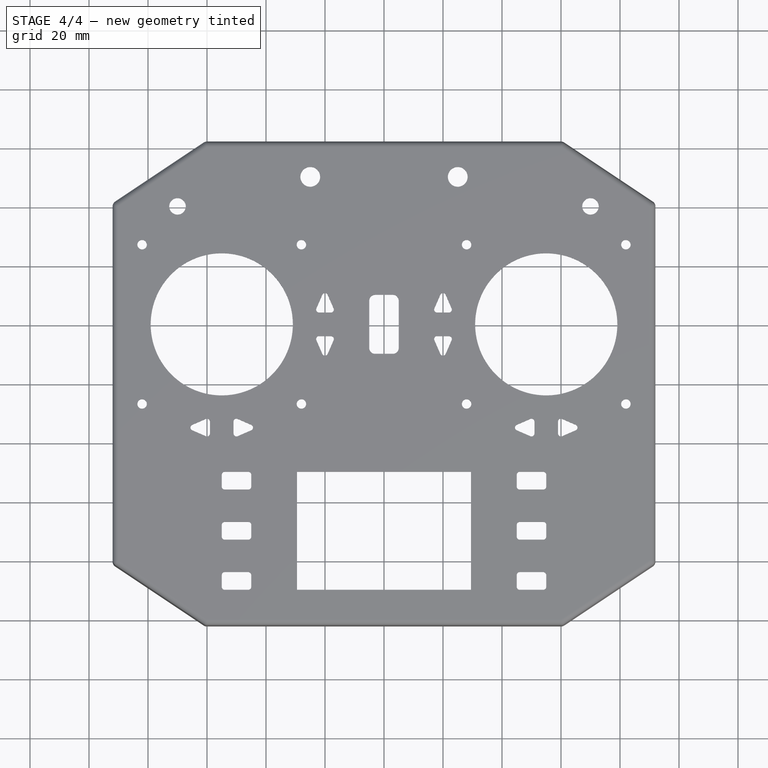
[diagram: stage 4 of 4 — top view after this stage's code; geometry added in this stage tinted green]
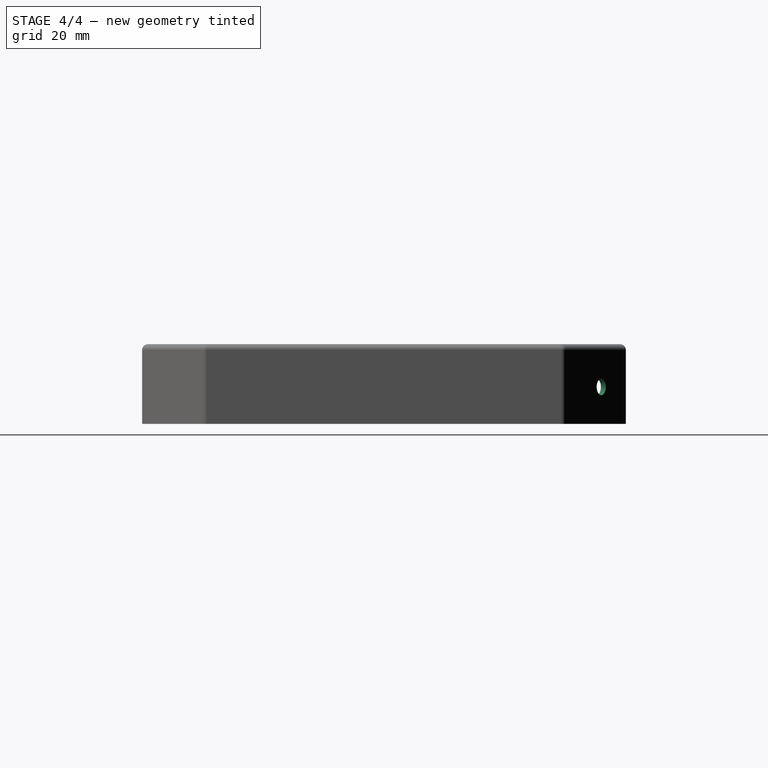
[diagram: stage 4 of 4 — right view after this stage's code; geometry added in this stage tinted green]
FEATURE [Sketcher::SketchObject] Sketch007
  FullyConstrained = true
  MapMode = 5
  Placement = pos=(-56.494,84.741,0) rot=(-0.209351,0.691438,0.691438;3.55433rad)
  Support = -> [Pocket002]
  expr: Constraints[2] = <<body>>.topDepth / 2
  expr: Constraints[1] = <<body>>.potBoundaryOffset * 2
  expr: Constraints[0] = <<body>>.toggleSwitchDia / 2
  sketch-geometry (1):
    g0: Circle CenterX=20 CenterY=-12.5 CenterZ=0 NormalX=0 NormalY=0 NormalZ=1 AngleXU=0 Radius=2.8
  constraints (3):
    c: Radius(g0) = 2.8
    c: DistanceX(g-1,g0) = 20
    c: DistanceY(g0,g-1) = 12.5
FEATURE [PartDesign::Pocket] Pocket003
  BaseFeature = -> Pocket002
  Length = 2
  Length2 = 100
  Profile = -> Sketch007
  Type = 0
  expr: Length = <<body>>.wallWidth
FEATURE [Sketcher::SketchObject] Sketch008
  FullyConstrained = true
  MapMode = 5
  Placement = pos=(56.494,84.741,0) rot=(0.209351,0.691438,0.691438;2.72885rad)
  Support = -> [Pocket003]
  expr: Constraints[2] = <<body>>.potBoundaryOffset * 2
  expr: Constraints[1] = <<body>>.topDepth / 2
  expr: Constraints[0] = <<body>>.toggleSwitchDia / 2
  sketch-geometry (1):
    g0: Circle CenterX=-20 CenterY=-12.5 CenterZ=0 NormalX=0 NormalY=0 NormalZ=1 AngleXU=0 Radius=2.8
  constraints (3):
    c: Radius(g0) = 2.8
    c: DistanceY(g0,g-1) = 12.5
    c: DistanceX(g0,g-1) = 20
FEATURE [PartDesign::Pocket] Pocket004
  BaseFeature = -> Pocket003
  Length = 2
  Length2 = 100
  Profile = -> Sketch008
  Type = 0
  expr: Length = <<body>>.wallWidth
FEATURE [Sketcher::SketchObject] Sketch009  label="Support"
  FullyConstrained = true
  MapMode = 5
  Placement = pos=(0,0,0) rot=(1,0,0;3.14159rad)
  Support = -> [Pocket004]
  expr: Constraints[299] = <<body>>.width / 2
  expr: Constraints[298] = <<body>>.supportHeight
  expr: Constraints[217] = (<<body>>.topLength - <<body>>.supportHeight) / 6
  expr: Constraints[204] = <<body>>.width / 2
  expr: Constraints[202] = <<body>>.supportHeight
  expr: Constraints[203] = <<body>>.topLength / 2
  expr: Constraints[192] = <<body>>.length / 2
  expr: Constraints[36] = (<<body>>.leftLength - <<body>>.supportHeight) / 6
  expr: Constraints[300] = <<body>>.topLength / 2
  expr: Constraints[22] = <<body>>.length
  expr: Constraints[313] = (<<body>>.topLength - <<body>>.supportHeight) / 6
  expr: Constraints[8] = <<body>>.supportHeight
  sketch-geometry (137):
    g0: LineSegment StartX=-90 StartY=60 StartZ=0 EndX=-88 EndY=60 EndZ=0
    g1: LineSegment StartX=-88 StartY=60 StartZ=0 EndX=-88 EndY=58 EndZ=0
    g2: LineSegment StartX=-88 StartY=58 StartZ=0 EndX=-90 EndY=58 EndZ=0
    g3: LineSegment StartX=-90 StartY=58 StartZ=0 EndX=-90 EndY=60 EndZ=0
    g4: LineSegment StartX=90 StartY=59.9767 StartZ=0 EndX=88 EndY=59.9767 EndZ=0
    g5: LineSegment StartX=88 StartY=59.9767 StartZ=0 EndX=88 EndY=57.9767 EndZ=0
    g6: LineSegment StartX=88 StartY=57.9767 StartZ=0 EndX=90 EndY=57.9767 EndZ=0
    g7: LineSegment StartX=90 StartY=57.9767 StartZ=0 EndX=90 EndY=59.9767 EndZ=0
    g8: LineSegment StartX=-90 StartY=60 StartZ=0 EndX=90 EndY=59.9767 EndZ=0
    g9: LineSegment StartX=-90.0026 StartY=40.3333 StartZ=0 EndX=-88.0026 EndY=40.3333 EndZ=0
    g10: LineSegment StartX=-88.0026 StartY=40.3333 StartZ=0 EndX=-88.0026 EndY=38.3333 EndZ=0
    g11: LineSegment StartX=-88.0026 StartY=38.3333 StartZ=0 EndX=-90.0026 EndY=38.3333 EndZ=0
    g12: LineSegment StartX=-90.0026 StartY=38.3333 StartZ=0 EndX=-90.0026 EndY=40.3333 EndZ=0
    g13: LineSegment StartX=-90 StartY=60 StartZ=0 EndX=-90.0026 EndY=40.3333 EndZ=0
    g14: LineSegment StartX=89.9974 StartY=40.31 StartZ=0 EndX=87.9974 EndY=40.31 EndZ=0
    g15: LineSegment StartX=87.9974 StartY=40.31 StartZ=0 EndX=87.9974 EndY=38.31 EndZ=0
    g16: LineSegment StartX=87.9974 StartY=38.31 StartZ=0 EndX=89.9974 EndY=38.31 EndZ=0
    g17: LineSegment StartX=89.9974 StartY=38.31 StartZ=0 EndX=89.9974 EndY=40.31 EndZ=0
    g18: LineSegment StartX=-90.0026 StartY=40.3333 StartZ=0 EndX=89.9974 EndY=40.31 EndZ=0
    g19: LineSegment StartX=-90.0051 StartY=20.6667 StartZ=0 EndX=-88.0051 EndY=20.6667 EndZ=0
    g20: LineSegment StartX=-88.0051 StartY=20.6667 StartZ=0 EndX=-88.0051 EndY=18.6667 EndZ=0
    g21: LineSegment StartX=-88.0051 StartY=18.6667 StartZ=0 EndX=-90.0051 EndY=18.6667 EndZ=0
    g22: LineSegment StartX=-90.0051 StartY=18.6667 StartZ=0 EndX=-90.0051 EndY=20.6667 EndZ=0
    g23: LineSegment StartX=-90.0026 StartY=40.3333 StartZ=0 EndX=-90.0051 EndY=20.6667 EndZ=0
    g24: LineSegment StartX=89.9949 StartY=20.6433 StartZ=0 EndX=87.9949 EndY=20.6433 EndZ=0
    g25: LineSegment StartX=87.9949 StartY=20.6433 StartZ=0 EndX=87.9949 EndY=18.6433 EndZ=0
    g26: LineSegment StartX=87.9949 StartY=18.6433 StartZ=0 EndX=89.9949 EndY=18.6433 EndZ=0
    g27: LineSegment StartX=89.9949 StartY=18.6433 StartZ=0 EndX=89.9949 EndY=20.6433 EndZ=0
    g28: LineSegment StartX=-90.0051 StartY=20.6667 StartZ=0 EndX=89.9949 EndY=20.6433 EndZ=0
    g29: LineSegment StartX=-90.0077 StartY=1 StartZ=0 EndX=-88.0077 EndY=1 EndZ=0
    g30: LineSegment StartX=-88.0077 StartY=1 StartZ=0 EndX=-88.0077 EndY=-1 EndZ=0
    g31: LineSegment StartX=-88.0077 StartY=-1 StartZ=0 EndX=-90.0077 EndY=-1 EndZ=0
    g32: LineSegment StartX=-90.0077 StartY=-1 StartZ=0 EndX=-90.0077 EndY=1 EndZ=0
    g33: LineSegment StartX=-90.0051 StartY=20.6667 StartZ=0 EndX=-90.0077 EndY=1 EndZ=0
    g34: LineSegment StartX=89.9923 StartY=0.976659 StartZ=0 EndX=87.9923 EndY=0.976659 EndZ=0
    g35: LineSegment StartX=87.9923 StartY=0.976659 StartZ=0 EndX=87.9923 EndY=-1.02334 EndZ=0
    g36: LineSegment StartX=87.9923 StartY=-1.02334 StartZ=0 EndX=89.9923 EndY=-1.02334 EndZ=0
    g37: LineSegment StartX=89.9923 StartY=-1.02334 StartZ=0 EndX=89.9923 EndY=0.976659 EndZ=0
    g38: LineSegment StartX=-90.0077 StartY=1 StartZ=0 EndX=89.9923 EndY=0.976659 EndZ=0
    g39: LineSegment StartX=-90.0102 StartY=-18.6667 StartZ=0 EndX=-88.0102 EndY=-18.6667 EndZ=0
    g40: LineSegment StartX=-88.0102 StartY=-18.6667 StartZ=0 EndX=-88.0102 EndY=-20.6667 EndZ=0
    g41: LineSegment StartX=-88.0102 StartY=-20.6667 StartZ=0 EndX=-90.0102 EndY=-20.6667 EndZ=0
    g42: LineSegment StartX=-90.0102 StartY=-20.6667 StartZ=0 EndX=-90.0102 EndY=-18.6667 EndZ=0
    g43: LineSegment StartX=-90.0077 StartY=1 StartZ=0 EndX=-90.0102 EndY=-18.6667 EndZ=0
    g44: LineSegment StartX=89.9898 StartY=-18.69 StartZ=0 EndX=87.9898 EndY=-18.69 EndZ=0
    g45: LineSegment StartX=87.9898 StartY=-18.69 StartZ=0 EndX=87.9898 EndY=-20.69 EndZ=0
    g46: LineSegment StartX=87.9898 StartY=-20.69 StartZ=0 EndX=89.9898 EndY=-20.69 EndZ=0
    g47: LineSegment StartX=89.9898 StartY=-20.69 StartZ=0 EndX=89.9898 EndY=-18.69 EndZ=0
    g48: LineSegment StartX=-90.0102 StartY=-18.6667 StartZ=0 EndX=89.9898 EndY=-18.69 EndZ=0
    g49: LineSegment StartX=-90.0128 StartY=-38.3333 StartZ=0 EndX=-88.0128 EndY=-38.3333 EndZ=0
    g50: LineSegment StartX=-88.0128 StartY=-38.3333 StartZ=0 EndX=-88.0128 EndY=-40.3333 EndZ=0
    g51: LineSegment StartX=-88.0128 StartY=-40.3333 StartZ=0 EndX=-90.0128 EndY=-40.3333 EndZ=0
    g52: LineSegment StartX=-90.0128 StartY=-40.3333 StartZ=0 EndX=-90.0128 EndY=-38.3333 EndZ=0
    g53: LineSegment StartX=-90.0102 StartY=-18.6667 StartZ=0 EndX=-90.0128 EndY=-38.3333 EndZ=0
    g54: LineSegment StartX=89.9872 StartY=-38.3567 StartZ=0 EndX=87.9872 EndY=-38.3567 EndZ=0
    g55: LineSegment StartX=87.9872 StartY=-38.3567 StartZ=0 EndX=87.9872 EndY=-40.3567 EndZ=0
    g56: LineSegment StartX=87.9872 StartY=-40.3567 StartZ=0 EndX=89.9872 EndY=-40.3567 EndZ=0
    g57: LineSegment StartX=89.9872 StartY=-40.3567 StartZ=0 EndX=89.9872 EndY=-38.3567 EndZ=0
    g58: LineSegment StartX=-90.0128 StartY=-38.3333 StartZ=0 EndX=89.9872 EndY=-38.3567 EndZ=0
    g59: LineSegment StartX=-90.0153 StartY=-58 StartZ=0 EndX=-88.0153 EndY=-58 EndZ=0
    g60: LineSegment StartX=-88.0153 StartY=-58 StartZ=0 EndX=-88.0153 EndY=-60 EndZ=0
    g61: LineSegment StartX=-88.0153 StartY=-60 StartZ=0 EndX=-90.0153 EndY=-60 EndZ=0
    g62: LineSegment StartX=-90.0153 StartY=-60 StartZ=0 EndX=-90.0153 EndY=-58 EndZ=0
    g63: LineSegment StartX=-90.0128 StartY=-38.3333 StartZ=0 EndX=-90.0153 EndY=-58 EndZ=0
    g64: LineSegment StartX=89.9847 StartY=-58.0233 StartZ=0 EndX=87.9847 EndY=-58.0233 EndZ=0
    g65: LineSegment StartX=87.9847 StartY=-58.0233 StartZ=0 EndX=87.9847 EndY=-60.0233 EndZ=0
    g66: LineSegment StartX=87.9847 StartY=-60.0233 StartZ=0 EndX=89.9847 EndY=-60.0233 EndZ=0
    g67: LineSegment StartX=89.9847 StartY=-60.0233 StartZ=0 EndX=89.9847 EndY=-58.0233 EndZ=0
    g68: LineSegment StartX=-90.0153 StartY=-58 StartZ=0 EndX=89.9847 EndY=-58.0233 EndZ=0
    g69: LineSegment StartX=-60 StartY=80 StartZ=0 EndX=-62 EndY=80 EndZ=0
    g70: LineSegment StartX=-62 StartY=80 StartZ=0 EndX=-62 EndY=78 EndZ=0
    g71: LineSegment StartX=-62 StartY=78 StartZ=0 EndX=-60 EndY=78 EndZ=0
    g72: LineSegment StartX=-60 StartY=78 StartZ=0 EndX=-60 EndY=80 EndZ=0
    g73: LineSegment StartX=-40.3333 StartY=80.007 StartZ=0 EndX=-38.3333 EndY=80.007 EndZ=0
    g74: LineSegment StartX=-38.3333 StartY=80.007 StartZ=0 EndX=-38.3333 EndY=78.007 EndZ=0
    g75: LineSegment StartX=-38.3333 StartY=78.007 StartZ=0 EndX=-40.3333 EndY=78.007 EndZ=0
    g76: LineSegment StartX=-40.3333 StartY=78.007 StartZ=0 EndX=-40.3333 EndY=80.007 EndZ=0
    g77: LineSegment StartX=-60 StartY=80 StartZ=0 EndX=-40.3333 EndY=80.007 EndZ=0
    g78: LineSegment StartX=-20.6667 StartY=80.0139 StartZ=0 EndX=-18.6667 EndY=80.0139 EndZ=0
    g79: LineSegment StartX=-18.6667 StartY=80.0139 StartZ=0 EndX=-18.6667 EndY=78.0139 EndZ=0
    g80: LineSegment StartX=-18.6667 StartY=78.0139 StartZ=0 EndX=-20.6667 EndY=78.0139 EndZ=0
    g81: LineSegment StartX=-20.6667 StartY=78.0139 StartZ=0 EndX=-20.6667 EndY=80.0139 EndZ=0
    g82: LineSegment StartX=-40.3333 StartY=80.007 StartZ=0 EndX=-20.6667 EndY=80.0139 EndZ=0
    g83: LineSegment StartX=-1 StartY=80.0209 StartZ=0 EndX=0.999996 EndY=80.0209 EndZ=0
    g84: LineSegment StartX=0.999996 StartY=80.0209 StartZ=0 EndX=0.999996 EndY=78.0209 EndZ=0
    g85: LineSegment StartX=0.999996 StartY=78.0209 StartZ=0 EndX=-1 EndY=78.0209 EndZ=0
    g86: LineSegment StartX=-1 StartY=78.0209 StartZ=0 EndX=-1 EndY=80.0209 EndZ=0
    g87: LineSegment StartX=-20.6667 StartY=80.0139 StartZ=0 EndX=-1 EndY=80.0209 EndZ=0
    g88: LineSegment StartX=18.6667 StartY=80.0278 StartZ=0 EndX=20.6667 EndY=80.0278 EndZ=0
    g89: LineSegment StartX=20.6667 StartY=80.0278 StartZ=0 EndX=20.6667 EndY=78.0278 EndZ=0
    g90: LineSegment StartX=20.6667 StartY=78.0278 StartZ=0 EndX=18.6667 EndY=78.0278 EndZ=0
    g91: LineSegment StartX=18.6667 StartY=78.0278 StartZ=0 EndX=18.6667 EndY=80.0278 EndZ=0
    g92: LineSegment StartX=-1 StartY=80.0209 StartZ=0 EndX=18.6667 EndY=80.0278 EndZ=0
    g93: LineSegment StartX=38.3333 StartY=80.0348 StartZ=0 EndX=40.3333 EndY=80.0348 EndZ=0
    g94: LineSegment StartX=40.3333 StartY=80.0348 StartZ=0 EndX=40.3333 EndY=78.0348 EndZ=0
    g95: LineSegment StartX=40.3333 StartY=78.0348 StartZ=0 EndX=38.3333 EndY=78.0348 EndZ=0
    g96: LineSegment StartX=38.3333 StartY=78.0348 StartZ=0 EndX=38.3333 EndY=80.0348 EndZ=0
    g97: LineSegment StartX=18.6667 StartY=80.0278 StartZ=0 EndX=38.3333 EndY=80.0348 EndZ=0
    g98: LineSegment StartX=58 StartY=80.0418 StartZ=0 EndX=60 EndY=80.0418 EndZ=0
    g99: LineSegment StartX=60 StartY=80.0418 StartZ=0 EndX=60 EndY=78.0418 EndZ=0
    g100: LineSegment StartX=60 StartY=78.0418 StartZ=0 EndX=58 EndY=78.0418 EndZ=0
    g101: LineSegment StartX=58 StartY=78.0418 StartZ=0 EndX=58 EndY=80.0418 EndZ=0
    g102: LineSegment StartX=38.3333 StartY=80.0348 StartZ=0 EndX=58 EndY=80.0418 EndZ=0
    g103: LineSegment StartX=-60 StartY=-78 StartZ=0 EndX=-58 EndY=-78 EndZ=0
    g104: LineSegment StartX=-58 StartY=-78 StartZ=0 EndX=-58 EndY=-80 EndZ=0
    g105: LineSegment StartX=-58 StartY=-80 StartZ=0 EndX=-60 EndY=-80 EndZ=0
    g106: LineSegment StartX=-60 StartY=-80 StartZ=0 EndX=-60 EndY=-78 EndZ=0
    g107: LineSegment StartX=-40.3333 StartY=-78.0041 StartZ=0 EndX=-38.3333 EndY=-78.0041 EndZ=0
    g108: LineSegment StartX=-38.3333 StartY=-78.0041 StartZ=0 EndX=-38.3333 EndY=-80.0041 EndZ=0
    g109: LineSegment StartX=-38.3333 StartY=-80.0041 StartZ=0 EndX=-40.3333 EndY=-80.0041 EndZ=0
    g110: LineSegment StartX=-40.3333 StartY=-80.0041 StartZ=0 EndX=-40.3333 EndY=-78.0041 EndZ=0
    g111: LineSegment StartX=-60 StartY=-78 StartZ=0 EndX=-40.3333 EndY=-78.0041 EndZ=0
    g112: LineSegment StartX=-20.6667 StartY=-78.0082 StartZ=0 EndX=-18.6667 EndY=-78.0082 EndZ=0
    g113: LineSegment StartX=-18.6667 StartY=-78.0082 StartZ=0 EndX=-18.6667 EndY=-80.0082 EndZ=0
    g114: LineSegment StartX=-18.6667 StartY=-80.0082 StartZ=0 EndX=-20.6667 EndY=-80.0082 EndZ=0
    g115: LineSegment StartX=-20.6667 StartY=-80.0082 StartZ=0 EndX=-20.6667 EndY=-78.0082 EndZ=0
    g116: LineSegment StartX=-40.3333 StartY=-78.0041 StartZ=0 EndX=-20.6667 EndY=-78.0082 EndZ=0
    g117: LineSegment StartX=-1 StartY=-78.0122 StartZ=0 EndX=0.999999 EndY=-78.0122 EndZ=0
    g118: LineSegment StartX=0.999999 StartY=-78.0122 StartZ=0 EndX=0.999999 EndY=-80.0122 EndZ=0
    g119: LineSegment StartX=0.999999 StartY=-80.0122 StartZ=0 EndX=-1 EndY=-80.0122 EndZ=0
    g120: LineSegment StartX=-1 StartY=-80.0122 StartZ=0 EndX=-1 EndY=-78.0122 EndZ=0
    g121: LineSegment StartX=-20.6667 StartY=-78.0082 StartZ=0 EndX=-1 EndY=-78.0122 EndZ=0
    g122: LineSegment StartX=18.6667 StartY=-78.0163 StartZ=0 EndX=20.6667 EndY=-78.0163 EndZ=0
    g123: LineSegment StartX=20.6667 StartY=-78.0163 StartZ=0 EndX=20.6667 EndY=-80.0163 EndZ=0
    g124: LineSegment StartX=20.6667 StartY=-80.0163 StartZ=0 EndX=18.6667 EndY=-80.0163 EndZ=0
    g125: LineSegment StartX=18.6667 StartY=-80.0163 StartZ=0 EndX=18.6667 EndY=-78.0163 EndZ=0
    g126: LineSegment StartX=-1 StartY=-78.0122 StartZ=0 EndX=18.6667 EndY=-78.0163 EndZ=0
    g127: LineSegment StartX=38.3333 StartY=-78.0204 StartZ=0 EndX=40.3333 EndY=-78.0204 EndZ=0
    g128: LineSegment StartX=40.3333 StartY=-78.0204 StartZ=0 EndX=40.3333 EndY=-80.0204 EndZ=0
    g129: LineSegment StartX=40.3333 StartY=-80.0204 StartZ=0 EndX=38.3333 EndY=-80.0204 EndZ=0
    g130: LineSegment StartX=38.3333 StartY=-80.0204 StartZ=0 EndX=38.3333 EndY=-78.0204 EndZ=0
    g131: LineSegment StartX=18.6667 StartY=-78.0163 StartZ=0 EndX=38.3333 EndY=-78.0204 EndZ=0
    g132: LineSegment StartX=58 StartY=-78.0245 StartZ=0 EndX=60 EndY=-78.0245 EndZ=0
    g133: LineSegment StartX=60 StartY=-78.0245 StartZ=0 EndX=60 EndY=-80.0245 EndZ=0
    g134: LineSegment StartX=60 StartY=-80.0245 StartZ=0 EndX=58 EndY=-80.0245 EndZ=0
    g135: LineSegment StartX=58 StartY=-80.0245 StartZ=0 EndX=58 EndY=-78.0245 EndZ=0
    g136: LineSegment StartX=38.3333 StartY=-78.0204 StartZ=0 EndX=58 EndY=-78.0245 EndZ=0
  constraints (385):
    c: Coincident(g0,g1)
    c: Coincident(g1,g2)
    c: Coincident(g2,g3)
    c: Coincident(g3,g0)
    c: Horizontal(g0)
    c: Horizontal(g2)
    c: Vertical(g1)
    c: Vertical(g3)
    c: DistanceY(g1,g1) = 2
    c: Equal(g0,g1)
    c: Coincident(g4,g5)
    c: Coincident(g5,g6)
    c: Coincident(g6,g7)
    c: Coincident(g7,g4)
    c: Horizontal(g4)
    c: Horizontal(g6)
    c: Vertical(g5)
    c: Vertical(g7)
    c: DistanceY(g5,g5) = 2
    c: Equal(g4,g5)
    c: Coincident(g0,g8)
    c: Coincident(g4,g8)
    c: Distance(g8) = 180
    c: Angle(g8) = -0.000129674
    c: Coincident(g9,g10)
    c: Coincident(g10,g11)
    c: Coincident(g11,g12)
    c: Coincident(g12,g9)
    c: Horizontal(g9)
    c: Horizontal(g11)
    c: Vertical(g10)
    c: Vertical(g12)
    c: DistanceY(g10,g10) = 2
    c: Equal(g9,g10)
    c: Coincident(g0,g13)
    c: Coincident(g9,g13)
    c: Distance(g13) = 19.6667
    c: Perpendicular(g13,g8)
    c: Coincident(g14,g15)
    c: Coincident(g15,g16)
    c: Coincident(g16,g17)
    c: Coincident(g17,g14)
    c: Horizontal(g14)
    c: Horizontal(g16)
    c: Vertical(g15)
    c: Vertical(g17)
    c: DistanceY(g15,g15) = 2
    c: Equal(g14,g15)
    c: Coincident(g9,g18)
    c: Coincident(g14,g18)
    c: Equal(g8,g18)
    c: Parallel(g18,g8)
    c: Coincident(g19,g20)
    c: Coincident(g20,g21)
    c: Coincident(g21,g22)
    c: Coincident(g22,g19)
    c: Horizontal(g19)
    c: Horizontal(g21)
    c: Vertical(g20)
    c: Vertical(g22)
    c: DistanceY(g20,g20) = 2
    c: Equal(g19,g20)
    c: Coincident(g9,g23)
    c: Coincident(g19,g23)
    c: Equal(g13,g23)
    c: Perpendicular(g23,g8)
    c: Coincident(g24,g25)
    c: Coincident(g25,g26)
    c: Coincident(g26,g27)
    c: Coincident(g27,g24)
    c: Horizontal(g24)
    c: Horizontal(g26)
    c: Vertical(g25)
    c: Vertical(g27)
    c: DistanceY(g25,g25) = 2
    c: Equal(g24,g25)
    c: Coincident(g19,g28)
    c: Coincident(g24,g28)
    c: Equal(g8,g28)
    c: Parallel(g28,g8)
    c: Coincident(g29,g30)
    c: Coincident(g30,g31)
    c: Coincident(g31,g32)
    c: Coincident(g32,g29)
    c: Horizontal(g29)
    c: Horizontal(g31)
    c: Vertical(g32)
    c: DistanceY(g30,g30) = 2
    c: Equal(g29,g30)
    c: Coincident(g19,g33)
    c: Coincident(g29,g33)
    c: Equal(g13,g33)
    c: Perpendicular(g33,g8)
    c: Coincident(g34,g35)
    c: Coincident(g35,g36)
    c: Coincident(g36,g37)
    c: Coincident(g37,g34)
    c: Horizontal(g34)
    c: Horizontal(g36)
    c: Vertical(g35)
    c: Vertical(g37)
    c: DistanceY(g35,g35) = 2
    c: Equal(g34,g35)
    c: Coincident(g29,g38)
    c: Coincident(g34,g38)
    c: Equal(g8,g38)
    c: Parallel(g38,g8)
    c: Coincident(g39,g40)
    c: Coincident(g40,g41)
    c: Coincident(g41,g42)
    c: Coincident(g42,g39)
    c: Horizontal(g39)
    c: Horizontal(g41)
    c: Vertical(g40)
    c: Vertical(g42)
    c: DistanceY(g40,g40) = 2
    c: Equal(g39,g40)
    c: Coincident(g29,g43)
    c: Coincident(g39,g43)
    c: Equal(g13,g43)
    c: Perpendicular(g43,g8)
    c: Coincident(g44,g45)
    c: Coincident(g45,g46)
    c: Coincident(g46,g47)
    c: Coincident(g47,g44)
    c: Horizontal(g44)
    c: Horizontal(g46)
    c: Vertical(g45)
    c: Vertical(g47)
    c: DistanceY(g45,g45) = 2
    c: Equal(g44,g45)
    c: Coincident(g39,g48)
    c: Coincident(g44,g48)
    c: Equal(g8,g48)
    c: Parallel(g48,g8)
    c: Coincident(g49,g50)
    c: Coincident(g50,g51)
    c: Coincident(g51,g52)
    c: Coincident(g52,g49)
    c: Horizontal(g49)
    c: Horizontal(g51)
    c: Vertical(g50)
    c: Vertical(g52)
    c: DistanceY(g50,g50) = 2
    c: Equal(g49,g50)
    c: Coincident(g39,g53)
    c: Coincident(g49,g53)
    c: Equal(g13,g53)
    c: Perpendicular(g53,g8)
    c: Coincident(g54,g55)
    c: Coincident(g55,g56)
    c: Coincident(g56,g57)
    c: Coincident(g57,g54)
    c: Horizontal(g54)
    c: Horizontal(g56)
    c: Vertical(g55)
    c: Vertical(g57)
    c: DistanceY(g55,g55) = 2
    c: Equal(g54,g55)
    c: Coincident(g49,g58)
    c: Coincident(g54,g58)
    c: Equal(g8,g58)
    c: Parallel(g58,g8)
    c: Coincident(g59,g60)
    c: Coincident(g60,g61)
    c: Coincident(g61,g62)
    c: Coincident(g62,g59)
    c: Horizontal(g59)
    c: Horizontal(g61)
    c: Vertical(g60)
    c: Vertical(g62)
    c: DistanceY(g60,g60) = 2
    c: Equal(g59,g60)
    c: Coincident(g49,g63)
    c: Coincident(g59,g63)
    c: Equal(g13,g63)
    c: Perpendicular(g63,g8)
    c: Coincident(g64,g65)
    c: Coincident(g65,g66)
    c: Coincident(g66,g67)
    c: Coincident(g67,g64)
    c: Horizontal(g64)
    c: Horizontal(g66)
    c: Vertical(g65)
    c: Vertical(g67)
    c: DistanceY(g65,g65) = 2
    c: Equal(g64,g65)
    c: Coincident(g59,g68)
    c: Coincident(g64,g68)
    c: Equal(g8,g68)
    c: Parallel(g68,g8)
    c: Symmetric(g29,g30,g-1)
    c: DistanceX(g2,g-1) = 90
    c: Coincident(g69,g70)
    c: Coincident(g70,g71)
    c: Coincident(g71,g72)
    c: Coincident(g72,g69)
    c: Horizontal(g69)
    c: Horizontal(g71)
    c: Vertical(g70)
    c: Vertical(g72)
    c: Equal(g69,g70)
    c: DistanceY(g70,g70) = 2
    c: DistanceX(g69,g-1) = 60
    c: DistanceY(g-1,g69) = 80
    c: Coincident(g73,g74)
    c: Coincident(g74,g75)
    c: Coincident(g75,g76)
    c: Coincident(g76,g73)
    c: Horizontal(g73)
    c: Horizontal(g75)
    c: Vertical(g74)
    c: Vertical(g76)
    c: Equal(g73,g74)
    c: DistanceY(g74,g74) = 2
    c: Coincident(g69,g77)
    c: Coincident(g73,g77)
    c: Distance(g77) = 19.6667
    c: Angle(g77) = 0.000353933
    c: Coincident(g78,g79)
    c: Coincident(g79,g80)
    c: Coincident(g80,g81)
    c: Coincident(g81,g78)
    c: Horizontal(g78)
    c: Horizontal(g80)
    c: Vertical(g79)
    c: Vertical(g81)
    c: Equal(g78,g79)
    c: DistanceY(g79,g79) = 2
    c: Coincident(g73,g82)
    c: Coincident(g78,g82)
    c: Equal(g77,g82)
    c: Parallel(g82,g77)
    c: Coincident(g83,g84)
    c: Coincident(g84,g85)
    c: Coincident(g85,g86)
    c: Coincident(g86,g83)
    c: Horizontal(g83)
    c: Horizontal(g85)
    c: Vertical(g84)
    c: Vertical(g86)
    c: Equal(g83,g84)
    c: DistanceY(g84,g84) = 2
    c: Coincident(g78,g87)
    c: Coincident(g83,g87)
    c: Equal(g77,g87)
    c: Parallel(g87,g77)
    c: Coincident(g88,g89)
    c: Coincident(g89,g90)
    c: Coincident(g90,g91)
    c: Coincident(g91,g88)
    c: Horizontal(g88)
    c: Horizontal(g90)
    c: Vertical(g89)
    c: Vertical(g91)
    c: Equal(g88,g89)
    c: DistanceY(g89,g89) = 2
    c: Coincident(g83,g92)
    c: Coincident(g88,g92)
    c: Equal(g77,g92)
    c: Parallel(g92,g77)
    c: Coincident(g93,g94)
    c: Coincident(g94,g95)
    c: Coincident(g95,g96)
    c: Coincident(g96,g93)
    c: Horizontal(g93)
    c: Horizontal(g95)
    c: Vertical(g94)
    c: Vertical(g96)
    c: Equal(g93,g94)
    c: DistanceY(g94,g94) = 2
    c: Coincident(g88,g97)
    c: Coincident(g93,g97)
    c: Equal(g77,g97)
    c: Parallel(g97,g77)
    c: Coincident(g98,g99)
    c: Coincident(g99,g100)
    c: Coincident(g100,g101)
    c: Coincident(g101,g98)
    c: Horizontal(g98)
    c: Horizontal(g100)
    c: Vertical(g99)
    c: Vertical(g101)
    c: Equal(g98,g99)
    c: DistanceY(g99,g99) = 2
    c: Coincident(g93,g102)
    c: Coincident(g98,g102)
    c: Equal(g77,g102)
    c: Parallel(g102,g77)
    c: Coincident(g103,g104)
    c: Coincident(g104,g105)
    c: Coincident(g105,g106)
    c: Coincident(g106,g103)
    c: Horizontal(g103)
    c: Horizontal(g105)
    c: Vertical(g104)
    c: Vertical(g106)
    c: Equal(g103,g104)
    c: DistanceX(g103,g103) = 2
    c: DistanceY(g104,g-1) = 80
    c: DistanceX(g105,g-1) = 60
    c: Coincident(g107,g108)
    c: Coincident(g108,g109)
    c: Coincident(g109,g110)
    c: Coincident(g110,g107)
    c: Horizontal(g107)
    c: Horizontal(g109)
    c: Vertical(g108)
    c: Vertical(g110)
    c: Equal(g107,g108)
    c: DistanceX(g107,g107) = 2
    c: Coincident(g103,g111)
    c: Coincident(g107,g111)
    c: Distance(g111) = 19.6667
    c: Angle(g111) = -0.000207509
    c: Coincident(g112,g113)
    c: Coincident(g113,g114)
    c: Coincident(g114,g115)
    c: Coincident(g115,g112)
    c: Horizontal(g112)
    c: Horizontal(g114)
    c: Vertical(g113)
    c: Vertical(g115)
    c: Equal(g112,g113)
    c: DistanceX(g112,g112) = 2
    c: Coincident(g107,g116)
    c: Coincident(g112,g116)
    c: Equal(g111,g116)
    c: Parallel(g116,g111)
    c: Coincident(g117,g118)
    c: Coincident(g118,g119)
    c: Coincident(g119,g120)
    c: Coincident(g120,g117)
    c: Horizontal(g117)
    c: Horizontal(g119)
    c: Vertical(g118)
    c: Vertical(g120)
    c: Equal(g117,g118)
    c: DistanceX(g117,g117) = 2
    c: Coincident(g112,g121)
    c: Coincident(g117,g121)
    c: Equal(g111,g121)
    c: Parallel(g121,g111)
    c: Coincident(g122,g123)
    c: Coincident(g123,g124)
    c: Coincident(g124,g125)
    c: Coincident(g125,g122)
    c: Horizontal(g122)
    c: Horizontal(g124)
    c: Vertical(g123)
    c: Vertical(g125)
    c: Equal(g122,g123)
    c: DistanceX(g122,g122) = 2
    c: Coincident(g117,g126)
    c: Coincident(g122,g126)
    c: Equal(g111,g126)
    c: Parallel(g126,g111)
    c: Coincident(g127,g128)
    c: Coincident(g128,g129)
    c: Coincident(g129,g130)
    c: Coincident(g130,g127)
    c: Horizontal(g127)
    c: Horizontal(g129)
    c: Vertical(g128)
    c: Vertical(g130)
    c: Equal(g127,g128)
    c: DistanceX(g127,g127) = 2
    c: Coincident(g122,g131)
    c: Coincident(g127,g131)
    c: Equal(g111,g131)
    c: Parallel(g131,g111)
    c: Coincident(g132,g133)
    c: Coincident(g133,g134)
    c: Coincident(g134,g135)
    c: Coincident(g135,g132)
    c: Horizontal(g132)
    c: Horizontal(g134)
    c: Vertical(g133)
    c: Vertical(g135)
    c: Equal(g132,g133)
    c: DistanceX(g132,g132) = 2
    c: Coincident(g127,g136)
    c: Coincident(g132,g136)
    c: Equal(g111,g136)
    c: Parallel(g136,g111)
FEATURE [PartDesign::Pad] Pad003  label="Support001"
  BaseFeature = -> Pocket004
  Direction = (-0.3,0,-1)
  Length = 2
  Length2 = 100
  Profile = -> Sketch009
  Type = 0
  expr: Length = <<body>>.supportHeight
FEATURE [PartDesign::Body] Body
  Group = -> [Sketch001,Pad001,Thickness,Sketch,Pocket,Fillet,Sketch002,Pocket001,Sketch003,Pad,Hole,Fillet001,Sketch005,Pad002,Sketch006,Pocket002,Sketch007,Pocket003,Sketch008,Pocket004,Sketch009,Pad003]
  Origin = -> Origin
  Tip = -> Pad003
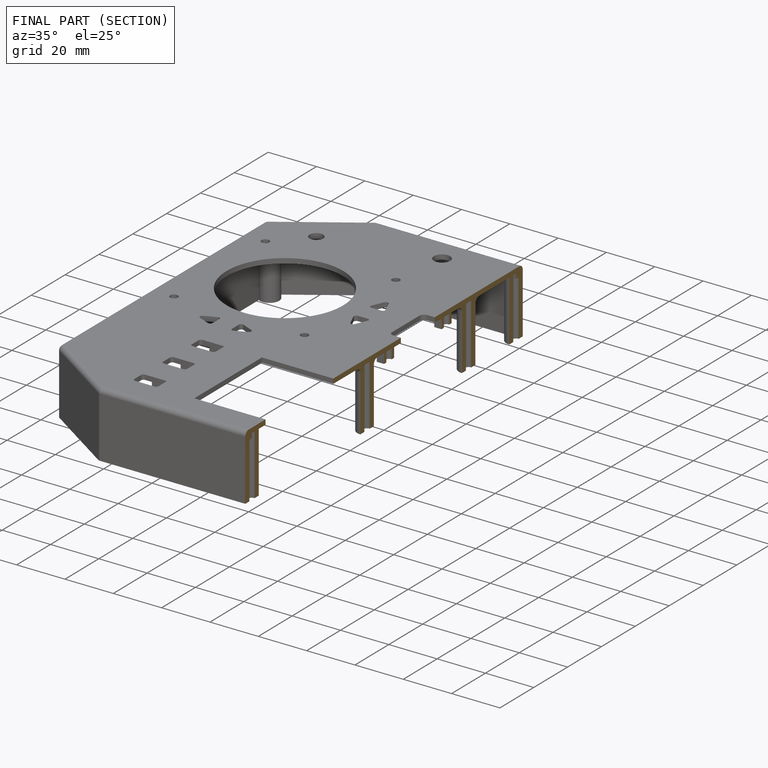
[diagram: finished part — half-section view (interior)]
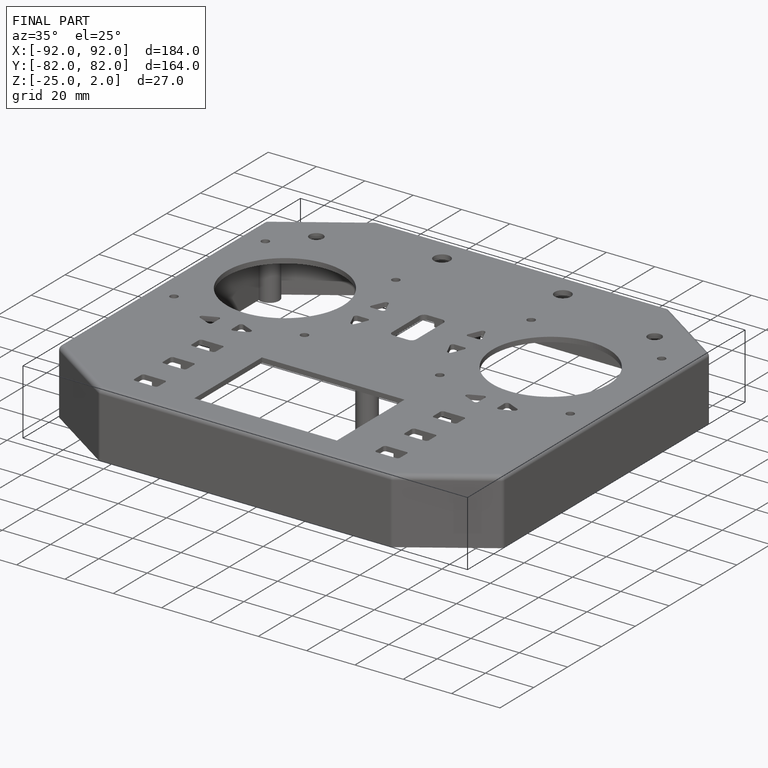
[diagram: finished part — iso view with bounding-box wireframe]
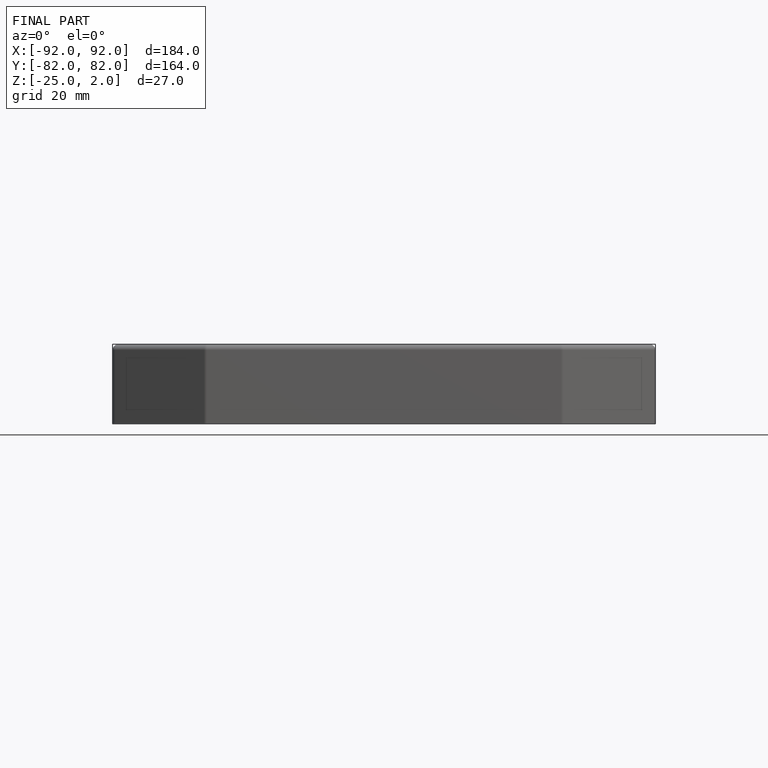
[diagram: finished part — front view with bounding-box wireframe]
